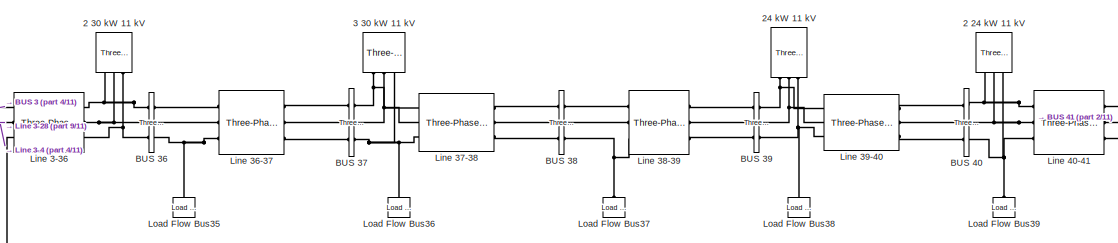
[diagram: root canvas - part 1/11, top left region]
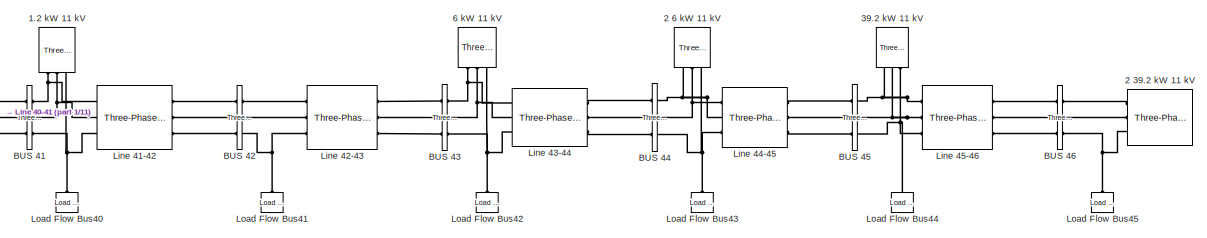
[diagram: root canvas - part 2/11, top center region]
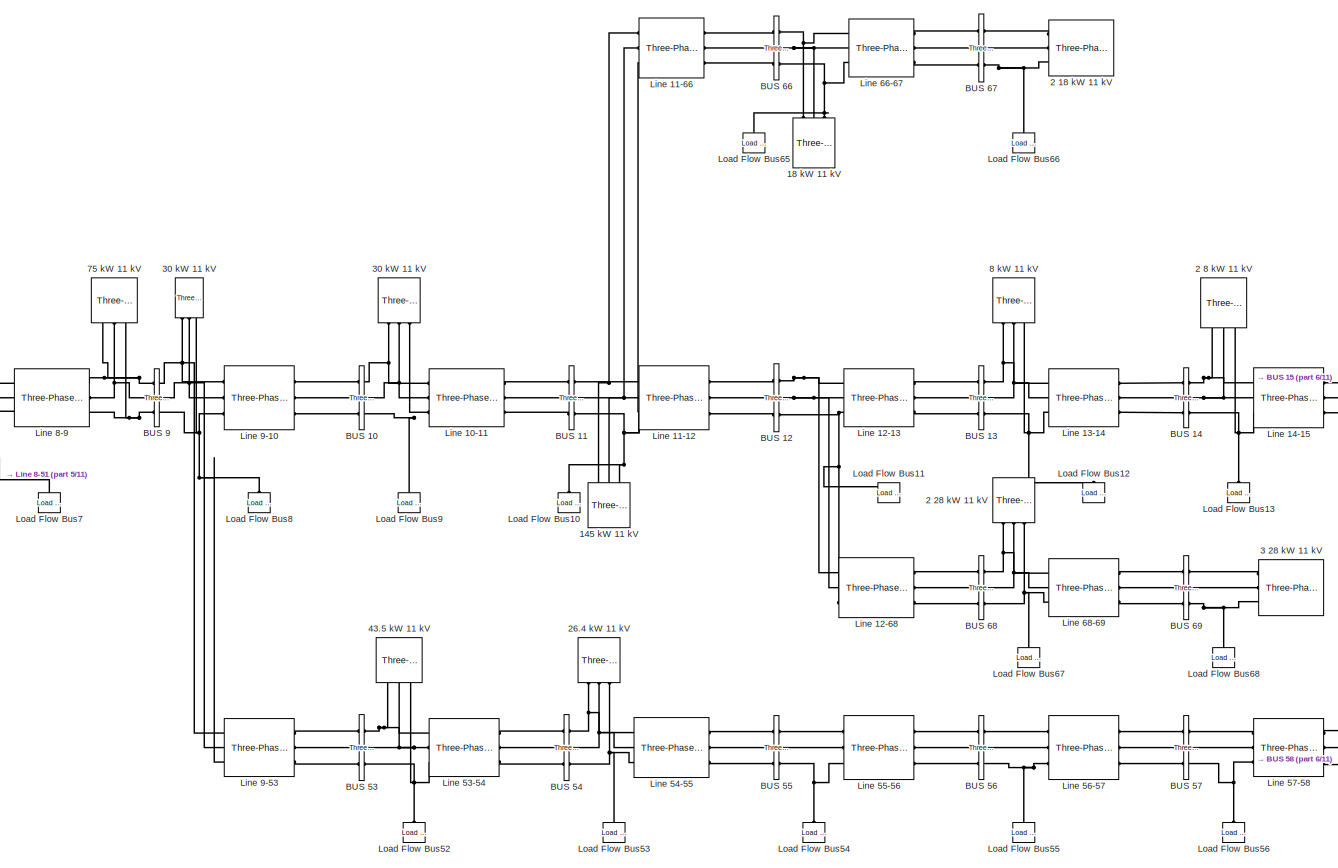
[diagram: root canvas - part 3/11, central region]
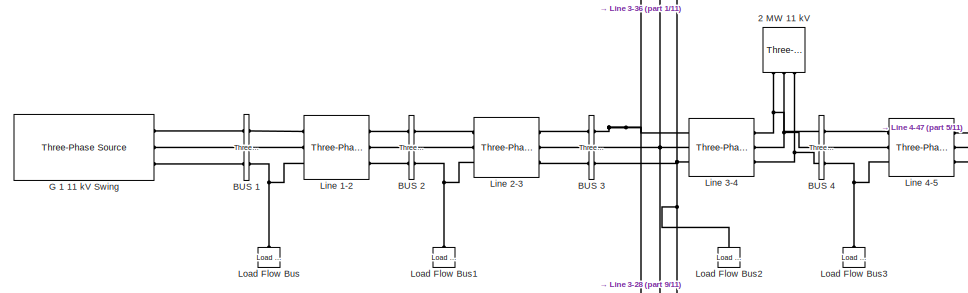
[diagram: root canvas - part 4/11, middle left region]
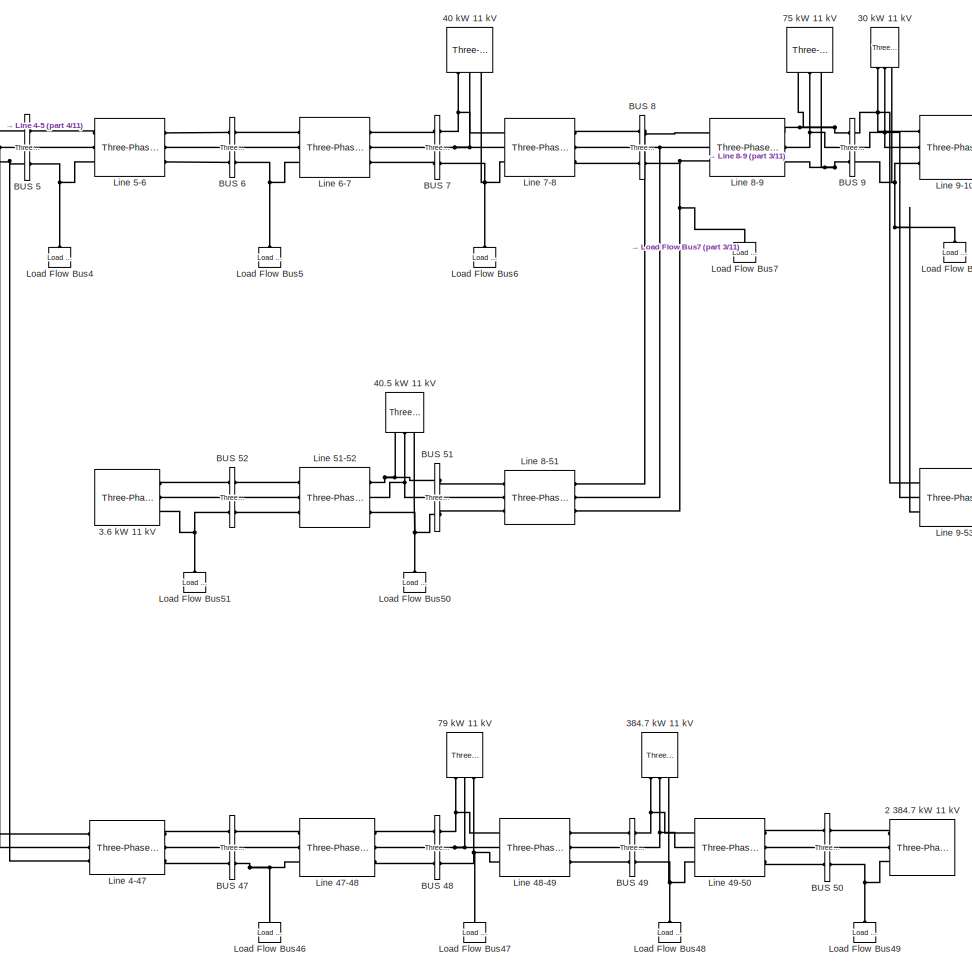
[diagram: root canvas - part 5/11, middle left region]
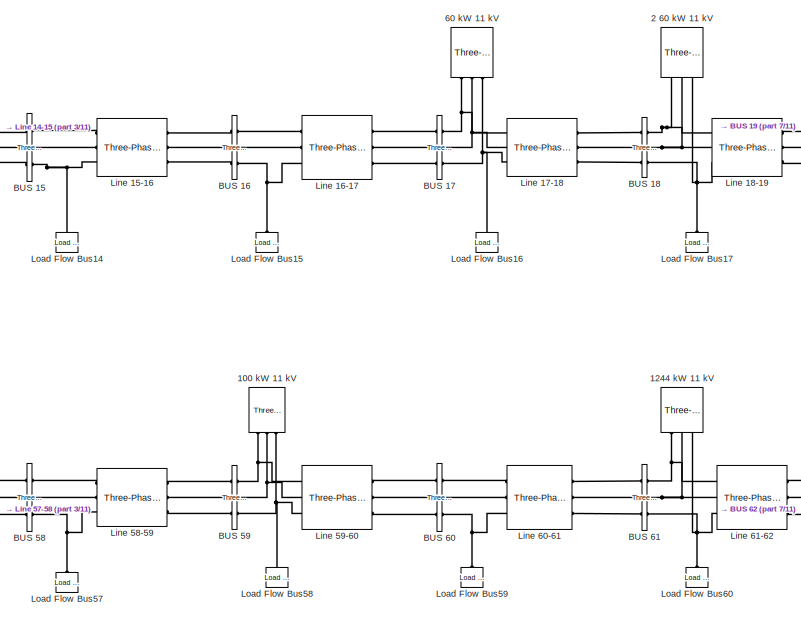
[diagram: root canvas - part 6/11, central region]
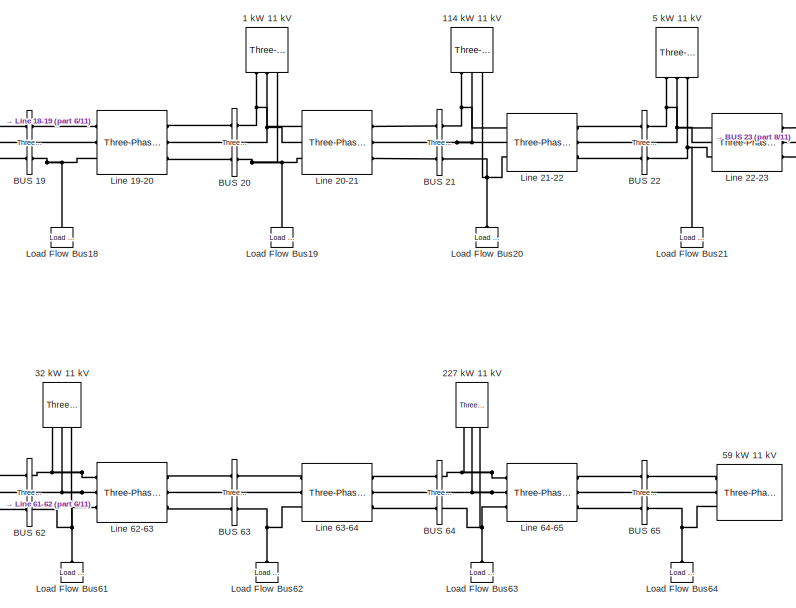
[diagram: root canvas - part 7/11, middle right region]
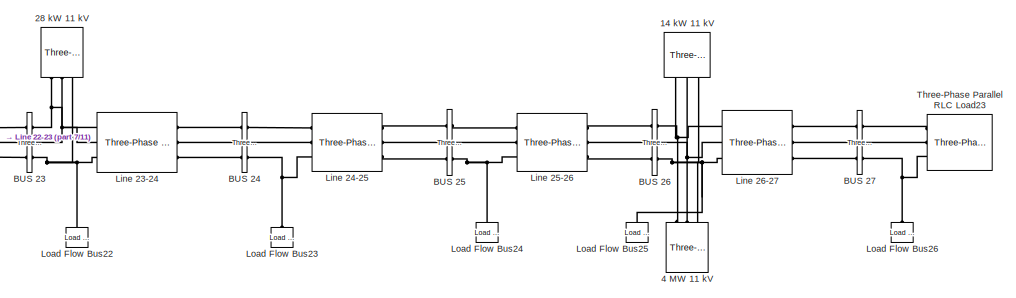
[diagram: root canvas - part 8/11, middle right region]
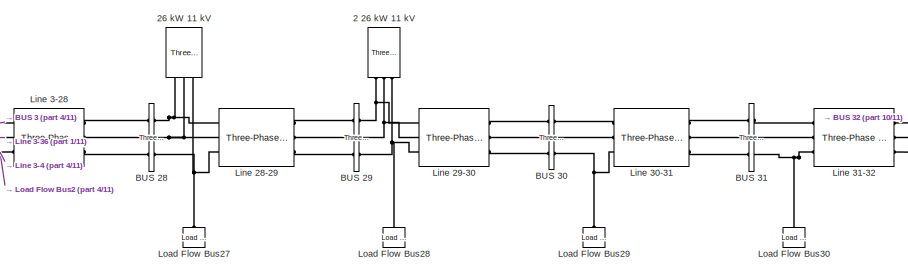
[diagram: root canvas - part 9/11, bottom left region]
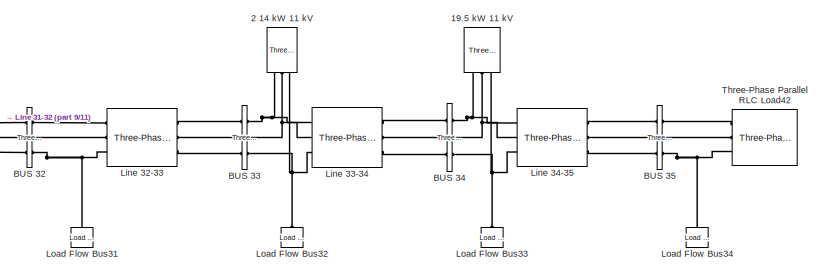
[diagram: root canvas - part 10/11, bottom center region]
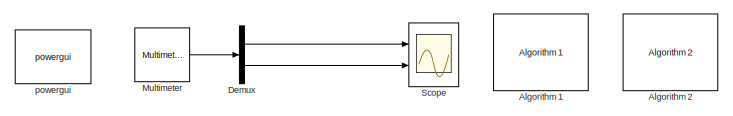
[diagram: root canvas - part 11/11, bottom left region]
MODEL slx_dbb0506e99c8
KIND model
CONFIG AbsTol = auto
CONFIG EnableMultiTasking = off
CONFIG FixedStep = auto
CONFIG MaxStep = 1e-4
CONFIG MinStep = auto
CONFIG RelTol = 1e-3
CONFIG SampleTimeConstraint = Unconstrained
CONFIG Solver = FixedStepDiscrete
CONFIG SolverName = FixedStepDiscrete
CONFIG StartTime = 0.0
CONFIG StopTime = 0.125 - 5e-5
BLOCK [Reference] 1 kW 11 kV  REF=powerlib/Elements/Three-Phase
Parallel RLC Load
  AttributesFormatString = \n
  Ports = [0, 0, 0, 0, 0, 3]
  SourceBlock = powerlib/Elements/Three-Phase\nParallel RLC Load
  SourceProductBaseCode = PS
  SourceProductName = Simscape Power Systems
  SourceType = Three-Phase Parallel RLC Load
BLOCK [Reference] 1.2 kW 11 kV  REF=powerlib/Elements/Three-Phase
Parallel RLC Load
  AttributesFormatString = \n
  Ports = [0, 0, 0, 0, 0, 3]
  SourceBlock = powerlib/Elements/Three-Phase\nParallel RLC Load
  SourceProductBaseCode = PS
  SourceProductName = Simscape Power Systems
  SourceType = Three-Phase Parallel RLC Load
BLOCK [Reference] 100 kW 11 kV  REF=powerlib/Elements/Three-Phase
Parallel RLC Load
  AttributesFormatString = \n
  Ports = [0, 0, 0, 0, 0, 3]
  SourceBlock = powerlib/Elements/Three-Phase\nParallel RLC Load
  SourceProductBaseCode = PS
  SourceProductName = Simscape Power Systems
  SourceType = Three-Phase Parallel RLC Load
BLOCK [Reference] 114 kW 11 kV  REF=powerlib/Elements/Three-Phase
Parallel RLC Load
  AttributesFormatString = \n
  Ports = [0, 0, 0, 0, 0, 3]
  SourceBlock = powerlib/Elements/Three-Phase\nParallel RLC Load
  SourceProductBaseCode = PS
  SourceProductName = Simscape Power Systems
  SourceType = Three-Phase Parallel RLC Load
BLOCK [Reference] 1244 kW 11 kV  REF=powerlib/Elements/Three-Phase
Parallel RLC Load
  AttributesFormatString = \n
  Ports = [0, 0, 0, 0, 0, 3]
  SourceBlock = powerlib/Elements/Three-Phase\nParallel RLC Load
  SourceProductBaseCode = PS
  SourceProductName = Simscape Power Systems
  SourceType = Three-Phase Parallel RLC Load
BLOCK [Reference] 14 kW 11 kV  REF=powerlib/Elements/Three-Phase
Parallel RLC Load
  AttributesFormatString = \n
  Ports = [0, 0, 0, 0, 0, 3]
  SourceBlock = powerlib/Elements/Three-Phase\nParallel RLC Load
  SourceProductBaseCode = PS
  SourceProductName = Simscape Power Systems
  SourceType = Three-Phase Parallel RLC Load
BLOCK [Reference] 145 kW 11 kV  REF=powerlib/Elements/Three-Phase
Parallel RLC Load
  AttributesFormatString = \n
  Ports = [0, 0, 0, 0, 0, 3]
  SourceBlock = powerlib/Elements/Three-Phase\nParallel RLC Load
  SourceProductBaseCode = PS
  SourceProductName = Simscape Power Systems
  SourceType = Three-Phase Parallel RLC Load
BLOCK [Reference] 18 kW 11 kV  REF=powerlib/Elements/Three-Phase
Parallel RLC Load
  AttributesFormatString = \n
  Ports = [0, 0, 0, 0, 0, 3]
  SourceBlock = powerlib/Elements/Three-Phase\nParallel RLC Load
  SourceProductBaseCode = PS
  SourceProductName = Simscape Power Systems
  SourceType = Three-Phase Parallel RLC Load
BLOCK [Reference] 19.5 kW 11 kV  REF=powerlib/Elements/Three-Phase
Parallel RLC Load
  AttributesFormatString = \n
  Ports = [0, 0, 0, 0, 0, 3]
  SourceBlock = powerlib/Elements/Three-Phase\nParallel RLC Load
  SourceProductBaseCode = PS
  SourceProductName = Simscape Power Systems
  SourceType = Three-Phase Parallel RLC Load
BLOCK [Reference] 2 14 kW 11 kV  REF=powerlib/Elements/Three-Phase
Parallel RLC Load
  AttributesFormatString = \n
  Ports = [0, 0, 0, 0, 0, 3]
  SourceBlock = powerlib/Elements/Three-Phase\nParallel RLC Load
  SourceProductBaseCode = PS
  SourceProductName = Simscape Power Systems
  SourceType = Three-Phase Parallel RLC Load
BLOCK [Reference] 2 18 kW 11 kV  REF=powerlib/Elements/Three-Phase
Parallel RLC Load
  AttributesFormatString = \n
  Ports = [0, 0, 0, 0, 0, 3]
  SourceBlock = powerlib/Elements/Three-Phase\nParallel RLC Load
  SourceProductBaseCode = PS
  SourceProductName = Simscape Power Systems
  SourceType = Three-Phase Parallel RLC Load
BLOCK [Reference] 2 24 kW 11 kV  REF=powerlib/Elements/Three-Phase
Parallel RLC Load
  AttributesFormatString = \n
  Ports = [0, 0, 0, 0, 0, 3]
  SourceBlock = powerlib/Elements/Three-Phase\nParallel RLC Load
  SourceProductBaseCode = PS
  SourceProductName = Simscape Power Systems
  SourceType = Three-Phase Parallel RLC Load
BLOCK [Reference] 2 26 kW 11 kV  REF=powerlib/Elements/Three-Phase
Parallel RLC Load
  AttributesFormatString = \n
  Ports = [0, 0, 0, 0, 0, 3]
  SourceBlock = powerlib/Elements/Three-Phase\nParallel RLC Load
  SourceProductBaseCode = PS
  SourceProductName = Simscape Power Systems
  SourceType = Three-Phase Parallel RLC Load
BLOCK [Reference] 2 28 kW 11 kV  REF=powerlib/Elements/Three-Phase
Parallel RLC Load
  AttributesFormatString = \n
  Ports = [0, 0, 0, 0, 0, 3]
  SourceBlock = powerlib/Elements/Three-Phase\nParallel RLC Load
  SourceProductBaseCode = PS
  SourceProductName = Simscape Power Systems
  SourceType = Three-Phase Parallel RLC Load
BLOCK [Reference] 2 30 kW 11 kV  REF=powerlib/Elements/Three-Phase
Parallel RLC Load
  AttributesFormatString = \n
  Ports = [0, 0, 0, 0, 0, 3]
  SourceBlock = powerlib/Elements/Three-Phase\nParallel RLC Load
  SourceProductBaseCode = PS
  SourceProductName = Simscape Power Systems
  SourceType = Three-Phase Parallel RLC Load
BLOCK [Reference] 2 384.7 kW 11 kV  REF=powerlib/Elements/Three-Phase
Parallel RLC Load
  AttributesFormatString = \n
  Ports = [0, 0, 0, 0, 0, 3]
  SourceBlock = powerlib/Elements/Three-Phase\nParallel RLC Load
  SourceProductBaseCode = PS
  SourceProductName = Simscape Power Systems
  SourceType = Three-Phase Parallel RLC Load
BLOCK [Reference] 2 39.2 kW 11 kV  REF=powerlib/Elements/Three-Phase
Parallel RLC Load
  AttributesFormatString = \n
  Ports = [0, 0, 0, 0, 0, 3]
  SourceBlock = powerlib/Elements/Three-Phase\nParallel RLC Load
  SourceProductBaseCode = PS
  SourceProductName = Simscape Power Systems
  SourceType = Three-Phase Parallel RLC Load
BLOCK [Reference] 2 6 kW 11 kV  REF=powerlib/Elements/Three-Phase
Parallel RLC Load
  AttributesFormatString = \n
  Ports = [0, 0, 0, 0, 0, 3]
  SourceBlock = powerlib/Elements/Three-Phase\nParallel RLC Load
  SourceProductBaseCode = PS
  SourceProductName = Simscape Power Systems
  SourceType = Three-Phase Parallel RLC Load
BLOCK [Reference] 2 60 kW 11 kV  REF=powerlib/Elements/Three-Phase
Parallel RLC Load
  AttributesFormatString = \n
  Ports = [0, 0, 0, 0, 0, 3]
  SourceBlock = powerlib/Elements/Three-Phase\nParallel RLC Load
  SourceProductBaseCode = PS
  SourceProductName = Simscape Power Systems
  SourceType = Three-Phase Parallel RLC Load
BLOCK [Reference] 2 8 kW 11 kV  REF=powerlib/Elements/Three-Phase
Parallel RLC Load
  AttributesFormatString = \n
  Ports = [0, 0, 0, 0, 0, 3]
  SourceBlock = powerlib/Elements/Three-Phase\nParallel RLC Load
  SourceProductBaseCode = PS
  SourceProductName = Simscape Power Systems
  SourceType = Three-Phase Parallel RLC Load
BLOCK [Reference] 2 MW 11 kV  REF=powerlib/Elements/Three-Phase
Parallel RLC Load
  AttributesFormatString = \n
  Ports = [0, 0, 0, 0, 0, 3]
  SourceBlock = powerlib/Elements/Three-Phase\nParallel RLC Load
  SourceProductBaseCode = PS
  SourceProductName = Simscape Power Systems
  SourceType = Three-Phase Parallel RLC Load
BLOCK [Reference] 227 kW 11 kV  REF=powerlib/Elements/Three-Phase
Parallel RLC Load
  AttributesFormatString = \n
  Ports = [0, 0, 0, 0, 0, 3]
  SourceBlock = powerlib/Elements/Three-Phase\nParallel RLC Load
  SourceProductBaseCode = PS
  SourceProductName = Simscape Power Systems
  SourceType = Three-Phase Parallel RLC Load
BLOCK [Reference] 24 kW 11 kV  REF=powerlib/Elements/Three-Phase
Parallel RLC Load
  AttributesFormatString = \n
  Ports = [0, 0, 0, 0, 0, 3]
  SourceBlock = powerlib/Elements/Three-Phase\nParallel RLC Load
  SourceProductBaseCode = PS
  SourceProductName = Simscape Power Systems
  SourceType = Three-Phase Parallel RLC Load
BLOCK [Reference] 26 kW 11 kV  REF=powerlib/Elements/Three-Phase
Parallel RLC Load
  AttributesFormatString = \n
  Ports = [0, 0, 0, 0, 0, 3]
  SourceBlock = powerlib/Elements/Three-Phase\nParallel RLC Load
  SourceProductBaseCode = PS
  SourceProductName = Simscape Power Systems
  SourceType = Three-Phase Parallel RLC Load
BLOCK [Reference] 26.4 kW 11 kV  REF=powerlib/Elements/Three-Phase
Parallel RLC Load
  AttributesFormatString = \n
  Ports = [0, 0, 0, 0, 0, 3]
  SourceBlock = powerlib/Elements/Three-Phase\nParallel RLC Load
  SourceProductBaseCode = PS
  SourceProductName = Simscape Power Systems
  SourceType = Three-Phase Parallel RLC Load
BLOCK [Reference] 28 kW 11 kV  REF=powerlib/Elements/Three-Phase
Parallel RLC Load
  AttributesFormatString = \n
  Ports = [0, 0, 0, 0, 0, 3]
  SourceBlock = powerlib/Elements/Three-Phase\nParallel RLC Load
  SourceProductBaseCode = PS
  SourceProductName = Simscape Power Systems
  SourceType = Three-Phase Parallel RLC Load
BLOCK [Reference] 3 28 kW 11 kV  REF=powerlib/Elements/Three-Phase
Parallel RLC Load
  AttributesFormatString = \n
  Ports = [0, 0, 0, 0, 0, 3]
  SourceBlock = powerlib/Elements/Three-Phase\nParallel RLC Load
  SourceProductBaseCode = PS
  SourceProductName = Simscape Power Systems
  SourceType = Three-Phase Parallel RLC Load
BLOCK [Reference] 3 30 kW 11 kV  REF=powerlib/Elements/Three-Phase
Parallel RLC Load
  AttributesFormatString = \n
  Ports = [0, 0, 0, 0, 0, 3]
  SourceBlock = powerlib/Elements/Three-Phase\nParallel RLC Load
  SourceProductBaseCode = PS
  SourceProductName = Simscape Power Systems
  SourceType = Three-Phase Parallel RLC Load
BLOCK [Reference] 3.6 kW 11 kV  REF=powerlib/Elements/Three-Phase
Parallel RLC Load
  AttributesFormatString = \n
  Ports = [0, 0, 0, 0, 0, 3]
  SourceBlock = powerlib/Elements/Three-Phase\nParallel RLC Load
  SourceProductBaseCode = PS
  SourceProductName = Simscape Power Systems
  SourceType = Three-Phase Parallel RLC Load
BLOCK [Reference] 30 kW 11 kV  REF=powerlib/Elements/Three-Phase
Parallel RLC Load
  AttributesFormatString = \n
  Ports = [0, 0, 0, 0, 0, 3]
  SourceBlock = powerlib/Elements/Three-Phase\nParallel RLC Load
  SourceProductBaseCode = PS
  SourceProductName = Simscape Power Systems
  SourceType = Three-Phase Parallel RLC Load
BLOCK [Reference] 32 kW 11 kV  REF=powerlib/Elements/Three-Phase
Parallel RLC Load
  AttributesFormatString = \n
  Ports = [0, 0, 0, 0, 0, 3]
  SourceBlock = powerlib/Elements/Three-Phase\nParallel RLC Load
  SourceProductBaseCode = PS
  SourceProductName = Simscape Power Systems
  SourceType = Three-Phase Parallel RLC Load
BLOCK [Reference] 384.7 kW 11 kV  REF=powerlib/Elements/Three-Phase
Parallel RLC Load
  AttributesFormatString = \n
  Ports = [0, 0, 0, 0, 0, 3]
  SourceBlock = powerlib/Elements/Three-Phase\nParallel RLC Load
  SourceProductBaseCode = PS
  SourceProductName = Simscape Power Systems
  SourceType = Three-Phase Parallel RLC Load
BLOCK [Reference] 39.2 kW 11 kV  REF=powerlib/Elements/Three-Phase
Parallel RLC Load
  AttributesFormatString = \n
  Ports = [0, 0, 0, 0, 0, 3]
  SourceBlock = powerlib/Elements/Three-Phase\nParallel RLC Load
  SourceProductBaseCode = PS
  SourceProductName = Simscape Power Systems
  SourceType = Three-Phase Parallel RLC Load
BLOCK [Reference] 4 MW 11 kV  REF=powerlib/Elements/Three-Phase
Parallel RLC Load
  AttributesFormatString = \n
  Ports = [0, 0, 0, 0, 0, 3]
  SourceBlock = powerlib/Elements/Three-Phase\nParallel RLC Load
  SourceProductBaseCode = PS
  SourceProductName = Simscape Power Systems
  SourceType = Three-Phase Parallel RLC Load
BLOCK [Reference] 40 kW 11 kV  REF=powerlib/Elements/Three-Phase
Parallel RLC Load
  AttributesFormatString = \n
  Ports = [0, 0, 0, 0, 0, 3]
  SourceBlock = powerlib/Elements/Three-Phase\nParallel RLC Load
  SourceProductBaseCode = PS
  SourceProductName = Simscape Power Systems
  SourceType = Three-Phase Parallel RLC Load
BLOCK [Reference] 40.5 kW 11 kV  REF=powerlib/Elements/Three-Phase
Parallel RLC Load
  AttributesFormatString = \n
  Ports = [0, 0, 0, 0, 0, 3]
  SourceBlock = powerlib/Elements/Three-Phase\nParallel RLC Load
  SourceProductBaseCode = PS
  SourceProductName = Simscape Power Systems
  SourceType = Three-Phase Parallel RLC Load
BLOCK [Reference] 43.5 kW 11 kV  REF=powerlib/Elements/Three-Phase
Parallel RLC Load
  AttributesFormatString = \n
  Ports = [0, 0, 0, 0, 0, 3]
  SourceBlock = powerlib/Elements/Three-Phase\nParallel RLC Load
  SourceProductBaseCode = PS
  SourceProductName = Simscape Power Systems
  SourceType = Three-Phase Parallel RLC Load
BLOCK [Reference] 5 kW 11 kV  REF=powerlib/Elements/Three-Phase
Parallel RLC Load
  AttributesFormatString = \n
  Ports = [0, 0, 0, 0, 0, 3]
  SourceBlock = powerlib/Elements/Three-Phase\nParallel RLC Load
  SourceProductBaseCode = PS
  SourceProductName = Simscape Power Systems
  SourceType = Three-Phase Parallel RLC Load
BLOCK [Reference] 59 kW 11 kV  REF=powerlib/Elements/Three-Phase
Parallel RLC Load
  AttributesFormatString = \n
  Ports = [0, 0, 0, 0, 0, 3]
  SourceBlock = powerlib/Elements/Three-Phase\nParallel RLC Load
  SourceProductBaseCode = PS
  SourceProductName = Simscape Power Systems
  SourceType = Three-Phase Parallel RLC Load
BLOCK [Reference] 6 kW 11 kV  REF=powerlib/Elements/Three-Phase
Parallel RLC Load
  AttributesFormatString = \n
  Ports = [0, 0, 0, 0, 0, 3]
  SourceBlock = powerlib/Elements/Three-Phase\nParallel RLC Load
  SourceProductBaseCode = PS
  SourceProductName = Simscape Power Systems
  SourceType = Three-Phase Parallel RLC Load
BLOCK [Reference] 60 kW 11 kV  REF=powerlib/Elements/Three-Phase
Parallel RLC Load
  AttributesFormatString = \n
  Ports = [0, 0, 0, 0, 0, 3]
  SourceBlock = powerlib/Elements/Three-Phase\nParallel RLC Load
  SourceProductBaseCode = PS
  SourceProductName = Simscape Power Systems
  SourceType = Three-Phase Parallel RLC Load
BLOCK [Reference] 75 kW 11 kV  REF=powerlib/Elements/Three-Phase
Parallel RLC Load
  AttributesFormatString = \n
  Ports = [0, 0, 0, 0, 0, 3]
  SourceBlock = powerlib/Elements/Three-Phase\nParallel RLC Load
  SourceProductBaseCode = PS
  SourceProductName = Simscape Power Systems
  SourceType = Three-Phase Parallel RLC Load
BLOCK [Reference] 79 kW 11 kV  REF=powerlib/Elements/Three-Phase
Parallel RLC Load
  AttributesFormatString = \n
  Ports = [0, 0, 0, 0, 0, 3]
  SourceBlock = powerlib/Elements/Three-Phase\nParallel RLC Load
  SourceProductBaseCode = PS
  SourceProductName = Simscape Power Systems
  SourceType = Three-Phase Parallel RLC Load
BLOCK [Reference] 8 kW 11 kV  REF=powerlib/Elements/Three-Phase
Parallel RLC Load
  AttributesFormatString = \n
  Ports = [0, 0, 0, 0, 0, 3]
  SourceBlock = powerlib/Elements/Three-Phase\nParallel RLC Load
  SourceProductBaseCode = PS
  SourceProductName = Simscape Power Systems
  SourceType = Three-Phase Parallel RLC Load
BLOCK [Reference] Algorithm 1  REF=auto_lib/Algorithm 1
  Ports = []
  SourceBlock = auto_lib/Algorithm 1
BLOCK [Reference] Algorithm 2  REF=auto_lib/Algorithm 2
  Ports = []
  SourceBlock = auto_lib/Algorithm 2
BLOCK [Reference] BUS 1  REF=powerlib/Measurements/Three-Phase
V-I Measurement
  Ports = [0, 0, 0, 0, 0, 3, 3]
  SourceBlock = powerlib/Measurements/Three-Phase\nV-I Measurement
  SourceProductBaseCode = PS
  SourceProductName = Simscape Power Systems
  SourceType = Three-Phase VI Measurement
BLOCK [Reference] BUS 10  REF=powerlib/Measurements/Three-Phase
V-I Measurement
  Ports = [0, 0, 0, 0, 0, 3, 3]
  SourceBlock = powerlib/Measurements/Three-Phase\nV-I Measurement
  SourceProductBaseCode = PS
  SourceProductName = Simscape Power Systems
  SourceType = Three-Phase VI Measurement
BLOCK [Reference] BUS 11  REF=powerlib/Measurements/Three-Phase
V-I Measurement
  Ports = [0, 0, 0, 0, 0, 3, 3]
  SourceBlock = powerlib/Measurements/Three-Phase\nV-I Measurement
  SourceProductBaseCode = PS
  SourceProductName = Simscape Power Systems
  SourceType = Three-Phase VI Measurement
BLOCK [Reference] BUS 12  REF=powerlib/Measurements/Three-Phase
V-I Measurement
  Ports = [0, 0, 0, 0, 0, 3, 3]
  SourceBlock = powerlib/Measurements/Three-Phase\nV-I Measurement
  SourceProductBaseCode = PS
  SourceProductName = Simscape Power Systems
  SourceType = Three-Phase VI Measurement
BLOCK [Reference] BUS 13  REF=powerlib/Measurements/Three-Phase
V-I Measurement
  Ports = [0, 0, 0, 0, 0, 3, 3]
  SourceBlock = powerlib/Measurements/Three-Phase\nV-I Measurement
  SourceProductBaseCode = PS
  SourceProductName = Simscape Power Systems
  SourceType = Three-Phase VI Measurement
BLOCK [Reference] BUS 14  REF=powerlib/Measurements/Three-Phase
V-I Measurement
  Ports = [0, 0, 0, 0, 0, 3, 3]
  SourceBlock = powerlib/Measurements/Three-Phase\nV-I Measurement
  SourceProductBaseCode = PS
  SourceProductName = Simscape Power Systems
  SourceType = Three-Phase VI Measurement
BLOCK [Reference] BUS 15  REF=powerlib/Measurements/Three-Phase
V-I Measurement
  Ports = [0, 0, 0, 0, 0, 3, 3]
  SourceBlock = powerlib/Measurements/Three-Phase\nV-I Measurement
  SourceProductBaseCode = PS
  SourceProductName = Simscape Power Systems
  SourceType = Three-Phase VI Measurement
BLOCK [Reference] BUS 16  REF=powerlib/Measurements/Three-Phase
V-I Measurement
  Ports = [0, 0, 0, 0, 0, 3, 3]
  SourceBlock = powerlib/Measurements/Three-Phase\nV-I Measurement
  SourceProductBaseCode = PS
  SourceProductName = Simscape Power Systems
  SourceType = Three-Phase VI Measurement
BLOCK [Reference] BUS 17  REF=powerlib/Measurements/Three-Phase
V-I Measurement
  Ports = [0, 0, 0, 0, 0, 3, 3]
  SourceBlock = powerlib/Measurements/Three-Phase\nV-I Measurement
  SourceProductBaseCode = PS
  SourceProductName = Simscape Power Systems
  SourceType = Three-Phase VI Measurement
BLOCK [Reference] BUS 18  REF=powerlib/Measurements/Three-Phase
V-I Measurement
  Ports = [0, 0, 0, 0, 0, 3, 3]
  SourceBlock = powerlib/Measurements/Three-Phase\nV-I Measurement
  SourceProductBaseCode = PS
  SourceProductName = Simscape Power Systems
  SourceType = Three-Phase VI Measurement
BLOCK [Reference] BUS 19  REF=powerlib/Measurements/Three-Phase
V-I Measurement
  Ports = [0, 0, 0, 0, 0, 3, 3]
  SourceBlock = powerlib/Measurements/Three-Phase\nV-I Measurement
  SourceProductBaseCode = PS
  SourceProductName = Simscape Power Systems
  SourceType = Three-Phase VI Measurement
BLOCK [Reference] BUS 2  REF=powerlib/Measurements/Three-Phase
V-I Measurement
  Ports = [0, 0, 0, 0, 0, 3, 3]
  SourceBlock = powerlib/Measurements/Three-Phase\nV-I Measurement
  SourceProductBaseCode = PS
  SourceProductName = Simscape Power Systems
  SourceType = Three-Phase VI Measurement
BLOCK [Reference] BUS 20  REF=powerlib/Measurements/Three-Phase
V-I Measurement
  Ports = [0, 0, 0, 0, 0, 3, 3]
  SourceBlock = powerlib/Measurements/Three-Phase\nV-I Measurement
  SourceProductBaseCode = PS
  SourceProductName = Simscape Power Systems
  SourceType = Three-Phase VI Measurement
BLOCK [Reference] BUS 21  REF=powerlib/Measurements/Three-Phase
V-I Measurement
  Ports = [0, 0, 0, 0, 0, 3, 3]
  SourceBlock = powerlib/Measurements/Three-Phase\nV-I Measurement
  SourceProductBaseCode = PS
  SourceProductName = Simscape Power Systems
  SourceType = Three-Phase VI Measurement
BLOCK [Reference] BUS 22  REF=powerlib/Measurements/Three-Phase
V-I Measurement
  Ports = [0, 0, 0, 0, 0, 3, 3]
  SourceBlock = powerlib/Measurements/Three-Phase\nV-I Measurement
  SourceProductBaseCode = PS
  SourceProductName = Simscape Power Systems
  SourceType = Three-Phase VI Measurement
BLOCK [Reference] BUS 23  REF=powerlib/Measurements/Three-Phase
V-I Measurement
  Ports = [0, 0, 0, 0, 0, 3, 3]
  SourceBlock = powerlib/Measurements/Three-Phase\nV-I Measurement
  SourceProductBaseCode = PS
  SourceProductName = Simscape Power Systems
  SourceType = Three-Phase VI Measurement
BLOCK [Reference] BUS 24  REF=powerlib/Measurements/Three-Phase
V-I Measurement
  Ports = [0, 0, 0, 0, 0, 3, 3]
  SourceBlock = powerlib/Measurements/Three-Phase\nV-I Measurement
  SourceProductBaseCode = PS
  SourceProductName = Simscape Power Systems
  SourceType = Three-Phase VI Measurement
BLOCK [Reference] BUS 25  REF=powerlib/Measurements/Three-Phase
V-I Measurement
  Ports = [0, 0, 0, 0, 0, 3, 3]
  SourceBlock = powerlib/Measurements/Three-Phase\nV-I Measurement
  SourceProductBaseCode = PS
  SourceProductName = Simscape Power Systems
  SourceType = Three-Phase VI Measurement
BLOCK [Reference] BUS 26  REF=powerlib/Measurements/Three-Phase
V-I Measurement
  Ports = [0, 0, 0, 0, 0, 3, 3]
  SourceBlock = powerlib/Measurements/Three-Phase\nV-I Measurement
  SourceProductBaseCode = PS
  SourceProductName = Simscape Power Systems
  SourceType = Three-Phase VI Measurement
BLOCK [Reference] BUS 27  REF=powerlib/Measurements/Three-Phase
V-I Measurement
  Ports = [0, 0, 0, 0, 0, 3, 3]
  SourceBlock = powerlib/Measurements/Three-Phase\nV-I Measurement
  SourceProductBaseCode = PS
  SourceProductName = Simscape Power Systems
  SourceType = Three-Phase VI Measurement
BLOCK [Reference] BUS 28  REF=powerlib/Measurements/Three-Phase
V-I Measurement
  Ports = [0, 0, 0, 0, 0, 3, 3]
  SourceBlock = powerlib/Measurements/Three-Phase\nV-I Measurement
  SourceProductBaseCode = PS
  SourceProductName = Simscape Power Systems
  SourceType = Three-Phase VI Measurement
BLOCK [Reference] BUS 29  REF=powerlib/Measurements/Three-Phase
V-I Measurement
  Ports = [0, 0, 0, 0, 0, 3, 3]
  SourceBlock = powerlib/Measurements/Three-Phase\nV-I Measurement
  SourceProductBaseCode = PS
  SourceProductName = Simscape Power Systems
  SourceType = Three-Phase VI Measurement
BLOCK [Reference] BUS 3  REF=powerlib/Measurements/Three-Phase
V-I Measurement
  Ports = [0, 0, 0, 0, 0, 3, 3]
  SourceBlock = powerlib/Measurements/Three-Phase\nV-I Measurement
  SourceProductBaseCode = PS
  SourceProductName = Simscape Power Systems
  SourceType = Three-Phase VI Measurement
BLOCK [Reference] BUS 30  REF=powerlib/Measurements/Three-Phase
V-I Measurement
  Ports = [0, 0, 0, 0, 0, 3, 3]
  SourceBlock = powerlib/Measurements/Three-Phase\nV-I Measurement
  SourceProductBaseCode = PS
  SourceProductName = Simscape Power Systems
  SourceType = Three-Phase VI Measurement
BLOCK [Reference] BUS 31  REF=powerlib/Measurements/Three-Phase
V-I Measurement
  Ports = [0, 0, 0, 0, 0, 3, 3]
  SourceBlock = powerlib/Measurements/Three-Phase\nV-I Measurement
  SourceProductBaseCode = PS
  SourceProductName = Simscape Power Systems
  SourceType = Three-Phase VI Measurement
BLOCK [Reference] BUS 32  REF=powerlib/Measurements/Three-Phase
V-I Measurement
  Ports = [0, 0, 0, 0, 0, 3, 3]
  SourceBlock = powerlib/Measurements/Three-Phase\nV-I Measurement
  SourceProductBaseCode = PS
  SourceProductName = Simscape Power Systems
  SourceType = Three-Phase VI Measurement
BLOCK [Reference] BUS 33  REF=powerlib/Measurements/Three-Phase
V-I Measurement
  Ports = [0, 0, 0, 0, 0, 3, 3]
  SourceBlock = powerlib/Measurements/Three-Phase\nV-I Measurement
  SourceProductBaseCode = PS
  SourceProductName = Simscape Power Systems
  SourceType = Three-Phase VI Measurement
BLOCK [Reference] BUS 34  REF=powerlib/Measurements/Three-Phase
V-I Measurement
  Ports = [0, 0, 0, 0, 0, 3, 3]
  SourceBlock = powerlib/Measurements/Three-Phase\nV-I Measurement
  SourceProductBaseCode = PS
  SourceProductName = Simscape Power Systems
  SourceType = Three-Phase VI Measurement
BLOCK [Reference] BUS 35  REF=powerlib/Measurements/Three-Phase
V-I Measurement
  Ports = [0, 0, 0, 0, 0, 3, 3]
  SourceBlock = powerlib/Measurements/Three-Phase\nV-I Measurement
  SourceProductBaseCode = PS
  SourceProductName = Simscape Power Systems
  SourceType = Three-Phase VI Measurement
BLOCK [Reference] BUS 36  REF=powerlib/Measurements/Three-Phase
V-I Measurement
  Ports = [0, 0, 0, 0, 0, 3, 3]
  SourceBlock = powerlib/Measurements/Three-Phase\nV-I Measurement
  SourceProductBaseCode = PS
  SourceProductName = Simscape Power Systems
  SourceType = Three-Phase VI Measurement
BLOCK [Reference] BUS 37  REF=powerlib/Measurements/Three-Phase
V-I Measurement
  Ports = [0, 0, 0, 0, 0, 3, 3]
  SourceBlock = powerlib/Measurements/Three-Phase\nV-I Measurement
  SourceProductBaseCode = PS
  SourceProductName = Simscape Power Systems
  SourceType = Three-Phase VI Measurement
BLOCK [Reference] BUS 38  REF=powerlib/Measurements/Three-Phase
V-I Measurement
  Ports = [0, 0, 0, 0, 0, 3, 3]
  SourceBlock = powerlib/Measurements/Three-Phase\nV-I Measurement
  SourceProductBaseCode = PS
  SourceProductName = Simscape Power Systems
  SourceType = Three-Phase VI Measurement
BLOCK [Reference] BUS 39  REF=powerlib/Measurements/Three-Phase
V-I Measurement
  Ports = [0, 0, 0, 0, 0, 3, 3]
  SourceBlock = powerlib/Measurements/Three-Phase\nV-I Measurement
  SourceProductBaseCode = PS
  SourceProductName = Simscape Power Systems
  SourceType = Three-Phase VI Measurement
BLOCK [Reference] BUS 4  REF=powerlib/Measurements/Three-Phase
V-I Measurement
  Ports = [0, 0, 0, 0, 0, 3, 3]
  SourceBlock = powerlib/Measurements/Three-Phase\nV-I Measurement
  SourceProductBaseCode = PS
  SourceProductName = Simscape Power Systems
  SourceType = Three-Phase VI Measurement
BLOCK [Reference] BUS 40  REF=powerlib/Measurements/Three-Phase
V-I Measurement
  Ports = [0, 0, 0, 0, 0, 3, 3]
  SourceBlock = powerlib/Measurements/Three-Phase\nV-I Measurement
  SourceProductBaseCode = PS
  SourceProductName = Simscape Power Systems
  SourceType = Three-Phase VI Measurement
BLOCK [Reference] BUS 41  REF=powerlib/Measurements/Three-Phase
V-I Measurement
  Ports = [0, 0, 0, 0, 0, 3, 3]
  SourceBlock = powerlib/Measurements/Three-Phase\nV-I Measurement
  SourceProductBaseCode = PS
  SourceProductName = Simscape Power Systems
  SourceType = Three-Phase VI Measurement
BLOCK [Reference] BUS 42  REF=powerlib/Measurements/Three-Phase
V-I Measurement
  Ports = [0, 0, 0, 0, 0, 3, 3]
  SourceBlock = powerlib/Measurements/Three-Phase\nV-I Measurement
  SourceProductBaseCode = PS
  SourceProductName = Simscape Power Systems
  SourceType = Three-Phase VI Measurement
BLOCK [Reference] BUS 43  REF=powerlib/Measurements/Three-Phase
V-I Measurement
  Ports = [0, 0, 0, 0, 0, 3, 3]
  SourceBlock = powerlib/Measurements/Three-Phase\nV-I Measurement
  SourceProductBaseCode = PS
  SourceProductName = Simscape Power Systems
  SourceType = Three-Phase VI Measurement
BLOCK [Reference] BUS 44  REF=powerlib/Measurements/Three-Phase
V-I Measurement
  Ports = [0, 0, 0, 0, 0, 3, 3]
  SourceBlock = powerlib/Measurements/Three-Phase\nV-I Measurement
  SourceProductBaseCode = PS
  SourceProductName = Simscape Power Systems
  SourceType = Three-Phase VI Measurement
BLOCK [Reference] BUS 45  REF=powerlib/Measurements/Three-Phase
V-I Measurement
  Ports = [0, 0, 0, 0, 0, 3, 3]
  SourceBlock = powerlib/Measurements/Three-Phase\nV-I Measurement
  SourceProductBaseCode = PS
  SourceProductName = Simscape Power Systems
  SourceType = Three-Phase VI Measurement
BLOCK [Reference] BUS 46  REF=powerlib/Measurements/Three-Phase
V-I Measurement
  Ports = [0, 0, 0, 0, 0, 3, 3]
  SourceBlock = powerlib/Measurements/Three-Phase\nV-I Measurement
  SourceProductBaseCode = PS
  SourceProductName = Simscape Power Systems
  SourceType = Three-Phase VI Measurement
BLOCK [Reference] BUS 47  REF=powerlib/Measurements/Three-Phase
V-I Measurement
  Ports = [0, 0, 0, 0, 0, 3, 3]
  SourceBlock = powerlib/Measurements/Three-Phase\nV-I Measurement
  SourceProductBaseCode = PS
  SourceProductName = Simscape Power Systems
  SourceType = Three-Phase VI Measurement
BLOCK [Reference] BUS 48  REF=powerlib/Measurements/Three-Phase
V-I Measurement
  Ports = [0, 0, 0, 0, 0, 3, 3]
  SourceBlock = powerlib/Measurements/Three-Phase\nV-I Measurement
  SourceProductBaseCode = PS
  SourceProductName = Simscape Power Systems
  SourceType = Three-Phase VI Measurement
BLOCK [Reference] BUS 49  REF=powerlib/Measurements/Three-Phase
V-I Measurement
  Ports = [0, 0, 0, 0, 0, 3, 3]
  SourceBlock = powerlib/Measurements/Three-Phase\nV-I Measurement
  SourceProductBaseCode = PS
  SourceProductName = Simscape Power Systems
  SourceType = Three-Phase VI Measurement
BLOCK [Reference] BUS 5  REF=powerlib/Measurements/Three-Phase
V-I Measurement
  Ports = [0, 0, 0, 0, 0, 3, 3]
  SourceBlock = powerlib/Measurements/Three-Phase\nV-I Measurement
  SourceProductBaseCode = PS
  SourceProductName = Simscape Power Systems
  SourceType = Three-Phase VI Measurement
BLOCK [Reference] BUS 50  REF=powerlib/Measurements/Three-Phase
V-I Measurement
  Ports = [0, 0, 0, 0, 0, 3, 3]
  SourceBlock = powerlib/Measurements/Three-Phase\nV-I Measurement
  SourceProductBaseCode = PS
  SourceProductName = Simscape Power Systems
  SourceType = Three-Phase VI Measurement
BLOCK [Reference] BUS 51  REF=powerlib/Measurements/Three-Phase
V-I Measurement
  Ports = [0, 0, 0, 0, 0, 3, 3]
  SourceBlock = powerlib/Measurements/Three-Phase\nV-I Measurement
  SourceProductBaseCode = PS
  SourceProductName = Simscape Power Systems
  SourceType = Three-Phase VI Measurement
BLOCK [Reference] BUS 52  REF=powerlib/Measurements/Three-Phase
V-I Measurement
  Ports = [0, 0, 0, 0, 0, 3, 3]
  SourceBlock = powerlib/Measurements/Three-Phase\nV-I Measurement
  SourceProductBaseCode = PS
  SourceProductName = Simscape Power Systems
  SourceType = Three-Phase VI Measurement
BLOCK [Reference] BUS 53  REF=powerlib/Measurements/Three-Phase
V-I Measurement
  Ports = [0, 0, 0, 0, 0, 3, 3]
  SourceBlock = powerlib/Measurements/Three-Phase\nV-I Measurement
  SourceProductBaseCode = PS
  SourceProductName = Simscape Power Systems
  SourceType = Three-Phase VI Measurement
BLOCK [Reference] BUS 54  REF=powerlib/Measurements/Three-Phase
V-I Measurement
  Ports = [0, 0, 0, 0, 0, 3, 3]
  SourceBlock = powerlib/Measurements/Three-Phase\nV-I Measurement
  SourceProductBaseCode = PS
  SourceProductName = Simscape Power Systems
  SourceType = Three-Phase VI Measurement
BLOCK [Reference] BUS 55  REF=powerlib/Measurements/Three-Phase
V-I Measurement
  Ports = [0, 0, 0, 0, 0, 3, 3]
  SourceBlock = powerlib/Measurements/Three-Phase\nV-I Measurement
  SourceProductBaseCode = PS
  SourceProductName = Simscape Power Systems
  SourceType = Three-Phase VI Measurement
BLOCK [Reference] BUS 56  REF=powerlib/Measurements/Three-Phase
V-I Measurement
  Ports = [0, 0, 0, 0, 0, 3, 3]
  SourceBlock = powerlib/Measurements/Three-Phase\nV-I Measurement
  SourceProductBaseCode = PS
  SourceProductName = Simscape Power Systems
  SourceType = Three-Phase VI Measurement
BLOCK [Reference] BUS 57  REF=powerlib/Measurements/Three-Phase
V-I Measurement
  Ports = [0, 0, 0, 0, 0, 3, 3]
  SourceBlock = powerlib/Measurements/Three-Phase\nV-I Measurement
  SourceProductBaseCode = PS
  SourceProductName = Simscape Power Systems
  SourceType = Three-Phase VI Measurement
BLOCK [Reference] BUS 58  REF=powerlib/Measurements/Three-Phase
V-I Measurement
  Ports = [0, 0, 0, 0, 0, 3, 3]
  SourceBlock = powerlib/Measurements/Three-Phase\nV-I Measurement
  SourceProductBaseCode = PS
  SourceProductName = Simscape Power Systems
  SourceType = Three-Phase VI Measurement
BLOCK [Reference] BUS 59  REF=powerlib/Measurements/Three-Phase
V-I Measurement
  Ports = [0, 0, 0, 0, 0, 3, 3]
  SourceBlock = powerlib/Measurements/Three-Phase\nV-I Measurement
  SourceProductBaseCode = PS
  SourceProductName = Simscape Power Systems
  SourceType = Three-Phase VI Measurement
BLOCK [Reference] BUS 6  REF=powerlib/Measurements/Three-Phase
V-I Measurement
  Ports = [0, 0, 0, 0, 0, 3, 3]
  SourceBlock = powerlib/Measurements/Three-Phase\nV-I Measurement
  SourceProductBaseCode = PS
  SourceProductName = Simscape Power Systems
  SourceType = Three-Phase VI Measurement
BLOCK [Reference] BUS 60  REF=powerlib/Measurements/Three-Phase
V-I Measurement
  Ports = [0, 0, 0, 0, 0, 3, 3]
  SourceBlock = powerlib/Measurements/Three-Phase\nV-I Measurement
  SourceProductBaseCode = PS
  SourceProductName = Simscape Power Systems
  SourceType = Three-Phase VI Measurement
BLOCK [Reference] BUS 61  REF=powerlib/Measurements/Three-Phase
V-I Measurement
  Ports = [0, 0, 0, 0, 0, 3, 3]
  SourceBlock = powerlib/Measurements/Three-Phase\nV-I Measurement
  SourceProductBaseCode = PS
  SourceProductName = Simscape Power Systems
  SourceType = Three-Phase VI Measurement
BLOCK [Reference] BUS 62  REF=powerlib/Measurements/Three-Phase
V-I Measurement
  Ports = [0, 0, 0, 0, 0, 3, 3]
  SourceBlock = powerlib/Measurements/Three-Phase\nV-I Measurement
  SourceProductBaseCode = PS
  SourceProductName = Simscape Power Systems
  SourceType = Three-Phase VI Measurement
BLOCK [Reference] BUS 63  REF=powerlib/Measurements/Three-Phase
V-I Measurement
  Ports = [0, 0, 0, 0, 0, 3, 3]
  SourceBlock = powerlib/Measurements/Three-Phase\nV-I Measurement
  SourceProductBaseCode = PS
  SourceProductName = Simscape Power Systems
  SourceType = Three-Phase VI Measurement
BLOCK [Reference] BUS 64  REF=powerlib/Measurements/Three-Phase
V-I Measurement
  Ports = [0, 0, 0, 0, 0, 3, 3]
  SourceBlock = powerlib/Measurements/Three-Phase\nV-I Measurement
  SourceProductBaseCode = PS
  SourceProductName = Simscape Power Systems
  SourceType = Three-Phase VI Measurement
BLOCK [Reference] BUS 65  REF=powerlib/Measurements/Three-Phase
V-I Measurement
  Ports = [0, 0, 0, 0, 0, 3, 3]
  SourceBlock = powerlib/Measurements/Three-Phase\nV-I Measurement
  SourceProductBaseCode = PS
  SourceProductName = Simscape Power Systems
  SourceType = Three-Phase VI Measurement
BLOCK [Reference] BUS 66  REF=powerlib/Measurements/Three-Phase
V-I Measurement
  Ports = [0, 0, 0, 0, 0, 3, 3]
  SourceBlock = powerlib/Measurements/Three-Phase\nV-I Measurement
  SourceProductBaseCode = PS
  SourceProductName = Simscape Power Systems
  SourceType = Three-Phase VI Measurement
BLOCK [Reference] BUS 67  REF=powerlib/Measurements/Three-Phase
V-I Measurement
  Ports = [0, 0, 0, 0, 0, 3, 3]
  SourceBlock = powerlib/Measurements/Three-Phase\nV-I Measurement
  SourceProductBaseCode = PS
  SourceProductName = Simscape Power Systems
  SourceType = Three-Phase VI Measurement
BLOCK [Reference] BUS 68  REF=powerlib/Measurements/Three-Phase
V-I Measurement
  Ports = [0, 0, 0, 0, 0, 3, 3]
  SourceBlock = powerlib/Measurements/Three-Phase\nV-I Measurement
  SourceProductBaseCode = PS
  SourceProductName = Simscape Power Systems
  SourceType = Three-Phase VI Measurement
BLOCK [Reference] BUS 69  REF=powerlib/Measurements/Three-Phase
V-I Measurement
  Ports = [0, 0, 0, 0, 0, 3, 3]
  SourceBlock = powerlib/Measurements/Three-Phase\nV-I Measurement
  SourceProductBaseCode = PS
  SourceProductName = Simscape Power Systems
  SourceType = Three-Phase VI Measurement
BLOCK [Reference] BUS 7  REF=powerlib/Measurements/Three-Phase
V-I Measurement
  Ports = [0, 0, 0, 0, 0, 3, 3]
  SourceBlock = powerlib/Measurements/Three-Phase\nV-I Measurement
  SourceProductBaseCode = PS
  SourceProductName = Simscape Power Systems
  SourceType = Three-Phase VI Measurement
BLOCK [Reference] BUS 8  REF=powerlib/Measurements/Three-Phase
V-I Measurement
  Ports = [0, 0, 0, 0, 0, 3, 3]
  SourceBlock = powerlib/Measurements/Three-Phase\nV-I Measurement
  SourceProductBaseCode = PS
  SourceProductName = Simscape Power Systems
  SourceType = Three-Phase VI Measurement
BLOCK [Reference] BUS 9  REF=powerlib/Measurements/Three-Phase
V-I Measurement
  Ports = [0, 0, 0, 0, 0, 3, 3]
  SourceBlock = powerlib/Measurements/Three-Phase\nV-I Measurement
  SourceProductBaseCode = PS
  SourceProductName = Simscape Power Systems
  SourceType = Three-Phase VI Measurement
BLOCK [Demux] Demux
  DisplayOption = bar
  Outputs = 2
  Ports = [1, 2]
BLOCK [Reference] G 1 11 kV Swing  REF=powerlib/Electrical
Sources/Three-Phase Source
  Ports = [0, 0, 0, 0, 0, 0, 3]
  SourceBlock = powerlib/Electrical\nSources/Three-Phase Source
  SourceProductBaseCode = PS
  SourceProductName = Simscape Power Systems
  SourceType = Three-Phase Source
BLOCK [Reference] Line 1-2  REF=powerlib/Elements/Three-Phase
Parallel RLC Branch
  AttributesFormatString = \n
  Ports = [0, 0, 0, 0, 0, 3, 3]
  SourceBlock = powerlib/Elements/Three-Phase\nParallel RLC Branch
  SourceProductBaseCode = PS
  SourceProductName = Simscape Power Systems
  SourceType = Three-Phase Parallel RLC Branch
BLOCK [Reference] Line 10-11  REF=powerlib/Elements/Three-Phase
Parallel RLC Branch
  AttributesFormatString = \n
  Ports = [0, 0, 0, 0, 0, 3, 3]
  SourceBlock = powerlib/Elements/Three-Phase\nParallel RLC Branch
  SourceProductBaseCode = PS
  SourceProductName = Simscape Power Systems
  SourceType = Three-Phase Parallel RLC Branch
BLOCK [Reference] Line 11-12  REF=powerlib/Elements/Three-Phase
Parallel RLC Branch
  AttributesFormatString = \n
  Ports = [0, 0, 0, 0, 0, 3, 3]
  SourceBlock = powerlib/Elements/Three-Phase\nParallel RLC Branch
  SourceProductBaseCode = PS
  SourceProductName = Simscape Power Systems
  SourceType = Three-Phase Parallel RLC Branch
BLOCK [Reference] Line 11-66  REF=powerlib/Elements/Three-Phase
Parallel RLC Branch
  AttributesFormatString = \n
  Ports = [0, 0, 0, 0, 0, 3, 3]
  SourceBlock = powerlib/Elements/Three-Phase\nParallel RLC Branch
  SourceProductBaseCode = PS
  SourceProductName = Simscape Power Systems
  SourceType = Three-Phase Parallel RLC Branch
BLOCK [Reference] Line 12-13  REF=powerlib/Elements/Three-Phase
Parallel RLC Branch
  AttributesFormatString = \n
  Ports = [0, 0, 0, 0, 0, 3, 3]
  SourceBlock = powerlib/Elements/Three-Phase\nParallel RLC Branch
  SourceProductBaseCode = PS
  SourceProductName = Simscape Power Systems
  SourceType = Three-Phase Parallel RLC Branch
BLOCK [Reference] Line 12-68  REF=powerlib/Elements/Three-Phase
Parallel RLC Branch
  AttributesFormatString = \n
  Ports = [0, 0, 0, 0, 0, 3, 3]
  SourceBlock = powerlib/Elements/Three-Phase\nParallel RLC Branch
  SourceProductBaseCode = PS
  SourceProductName = Simscape Power Systems
  SourceType = Three-Phase Parallel RLC Branch
BLOCK [Reference] Line 13-14  REF=powerlib/Elements/Three-Phase
Parallel RLC Branch
  AttributesFormatString = \n
  Ports = [0, 0, 0, 0, 0, 3, 3]
  SourceBlock = powerlib/Elements/Three-Phase\nParallel RLC Branch
  SourceProductBaseCode = PS
  SourceProductName = Simscape Power Systems
  SourceType = Three-Phase Parallel RLC Branch
BLOCK [Reference] Line 14-15  REF=powerlib/Elements/Three-Phase
Parallel RLC Branch
  AttributesFormatString = \n
  Ports = [0, 0, 0, 0, 0, 3, 3]
  SourceBlock = powerlib/Elements/Three-Phase\nParallel RLC Branch
  SourceProductBaseCode = PS
  SourceProductName = Simscape Power Systems
  SourceType = Three-Phase Parallel RLC Branch
BLOCK [Reference] Line 15-16  REF=powerlib/Elements/Three-Phase
Parallel RLC Branch
  AttributesFormatString = \n
  Ports = [0, 0, 0, 0, 0, 3, 3]
  SourceBlock = powerlib/Elements/Three-Phase\nParallel RLC Branch
  SourceProductBaseCode = PS
  SourceProductName = Simscape Power Systems
  SourceType = Three-Phase Parallel RLC Branch
BLOCK [Reference] Line 16-17  REF=powerlib/Elements/Three-Phase
Parallel RLC Branch
  AttributesFormatString = \n
  Ports = [0, 0, 0, 0, 0, 3, 3]
  SourceBlock = powerlib/Elements/Three-Phase\nParallel RLC Branch
  SourceProductBaseCode = PS
  SourceProductName = Simscape Power Systems
  SourceType = Three-Phase Parallel RLC Branch
BLOCK [Reference] Line 17-18  REF=powerlib/Elements/Three-Phase
Parallel RLC Branch
  AttributesFormatString = \n
  Ports = [0, 0, 0, 0, 0, 3, 3]
  SourceBlock = powerlib/Elements/Three-Phase\nParallel RLC Branch
  SourceProductBaseCode = PS
  SourceProductName = Simscape Power Systems
  SourceType = Three-Phase Parallel RLC Branch
BLOCK [Reference] Line 18-19  REF=powerlib/Elements/Three-Phase
Parallel RLC Branch
  AttributesFormatString = \n
  Ports = [0, 0, 0, 0, 0, 3, 3]
  SourceBlock = powerlib/Elements/Three-Phase\nParallel RLC Branch
  SourceProductBaseCode = PS
  SourceProductName = Simscape Power Systems
  SourceType = Three-Phase Parallel RLC Branch
BLOCK [Reference] Line 19-20  REF=powerlib/Elements/Three-Phase
Parallel RLC Branch
  AttributesFormatString = \n
  Ports = [0, 0, 0, 0, 0, 3, 3]
  SourceBlock = powerlib/Elements/Three-Phase\nParallel RLC Branch
  SourceProductBaseCode = PS
  SourceProductName = Simscape Power Systems
  SourceType = Three-Phase Parallel RLC Branch
BLOCK [Reference] Line 2-3  REF=powerlib/Elements/Three-Phase
Parallel RLC Branch
  AttributesFormatString = \n
  Ports = [0, 0, 0, 0, 0, 3, 3]
  SourceBlock = powerlib/Elements/Three-Phase\nParallel RLC Branch
  SourceProductBaseCode = PS
  SourceProductName = Simscape Power Systems
  SourceType = Three-Phase Parallel RLC Branch
BLOCK [Reference] Line 20-21  REF=powerlib/Elements/Three-Phase
Parallel RLC Branch
  AttributesFormatString = \n
  Ports = [0, 0, 0, 0, 0, 3, 3]
  SourceBlock = powerlib/Elements/Three-Phase\nParallel RLC Branch
  SourceProductBaseCode = PS
  SourceProductName = Simscape Power Systems
  SourceType = Three-Phase Parallel RLC Branch
BLOCK [Reference] Line 21-22  REF=powerlib/Elements/Three-Phase
Parallel RLC Branch
  AttributesFormatString = \n
  Ports = [0, 0, 0, 0, 0, 3, 3]
  SourceBlock = powerlib/Elements/Three-Phase\nParallel RLC Branch
  SourceProductBaseCode = PS
  SourceProductName = Simscape Power Systems
  SourceType = Three-Phase Parallel RLC Branch
BLOCK [Reference] Line 22-23  REF=powerlib/Elements/Three-Phase
Parallel RLC Branch
  AttributesFormatString = \n
  Ports = [0, 0, 0, 0, 0, 3, 3]
  SourceBlock = powerlib/Elements/Three-Phase\nParallel RLC Branch
  SourceProductBaseCode = PS
  SourceProductName = Simscape Power Systems
  SourceType = Three-Phase Parallel RLC Branch
BLOCK [Reference] Line 23-24  REF=powerlib/Elements/Three-Phase
Parallel RLC Branch
  AttributesFormatString = \n
  Ports = [0, 0, 0, 0, 0, 3, 3]
  SourceBlock = powerlib/Elements/Three-Phase\nParallel RLC Branch
  SourceProductBaseCode = PS
  SourceProductName = Simscape Power Systems
  SourceType = Three-Phase Parallel RLC Branch
BLOCK [Reference] Line 24-25  REF=powerlib/Elements/Three-Phase
Parallel RLC Branch
  AttributesFormatString = \n
  Ports = [0, 0, 0, 0, 0, 3, 3]
  SourceBlock = powerlib/Elements/Three-Phase\nParallel RLC Branch
  SourceProductBaseCode = PS
  SourceProductName = Simscape Power Systems
  SourceType = Three-Phase Parallel RLC Branch
BLOCK [Reference] Line 25-26  REF=powerlib/Elements/Three-Phase
Parallel RLC Branch
  AttributesFormatString = \n
  Ports = [0, 0, 0, 0, 0, 3, 3]
  SourceBlock = powerlib/Elements/Three-Phase\nParallel RLC Branch
  SourceProductBaseCode = PS
  SourceProductName = Simscape Power Systems
  SourceType = Three-Phase Parallel RLC Branch
BLOCK [Reference] Line 26-27  REF=powerlib/Elements/Three-Phase
Parallel RLC Branch
  AttributesFormatString = \n
  Ports = [0, 0, 0, 0, 0, 3, 3]
  SourceBlock = powerlib/Elements/Three-Phase\nParallel RLC Branch
  SourceProductBaseCode = PS
  SourceProductName = Simscape Power Systems
  SourceType = Three-Phase Parallel RLC Branch
BLOCK [Reference] Line 28-29  REF=powerlib/Elements/Three-Phase
Parallel RLC Branch
  AttributesFormatString = \n
  Ports = [0, 0, 0, 0, 0, 3, 3]
  SourceBlock = powerlib/Elements/Three-Phase\nParallel RLC Branch
  SourceProductBaseCode = PS
  SourceProductName = Simscape Power Systems
  SourceType = Three-Phase Parallel RLC Branch
BLOCK [Reference] Line 29-30  REF=powerlib/Elements/Three-Phase
Parallel RLC Branch
  AttributesFormatString = \n
  Ports = [0, 0, 0, 0, 0, 3, 3]
  SourceBlock = powerlib/Elements/Three-Phase\nParallel RLC Branch
  SourceProductBaseCode = PS
  SourceProductName = Simscape Power Systems
  SourceType = Three-Phase Parallel RLC Branch
BLOCK [Reference] Line 3-28  REF=powerlib/Elements/Three-Phase
Parallel RLC Branch
  AttributesFormatString = \n
  Ports = [0, 0, 0, 0, 0, 3, 3]
  SourceBlock = powerlib/Elements/Three-Phase\nParallel RLC Branch
  SourceProductBaseCode = PS
  SourceProductName = Simscape Power Systems
  SourceType = Three-Phase Parallel RLC Branch
BLOCK [Reference] Line 3-36  REF=powerlib/Elements/Three-Phase
Parallel RLC Branch
  AttributesFormatString = \n
  Ports = [0, 0, 0, 0, 0, 3, 3]
  SourceBlock = powerlib/Elements/Three-Phase\nParallel RLC Branch
  SourceProductBaseCode = PS
  SourceProductName = Simscape Power Systems
  SourceType = Three-Phase Parallel RLC Branch
BLOCK [Reference] Line 3-4  REF=powerlib/Elements/Three-Phase
Parallel RLC Branch
  AttributesFormatString = \n
  Ports = [0, 0, 0, 0, 0, 3, 3]
  SourceBlock = powerlib/Elements/Three-Phase\nParallel RLC Branch
  SourceProductBaseCode = PS
  SourceProductName = Simscape Power Systems
  SourceType = Three-Phase Parallel RLC Branch
BLOCK [Reference] Line 30-31  REF=powerlib/Elements/Three-Phase
Parallel RLC Branch
  AttributesFormatString = \n
  Ports = [0, 0, 0, 0, 0, 3, 3]
  SourceBlock = powerlib/Elements/Three-Phase\nParallel RLC Branch
  SourceProductBaseCode = PS
  SourceProductName = Simscape Power Systems
  SourceType = Three-Phase Parallel RLC Branch
BLOCK [Reference] Line 31-32  REF=powerlib/Elements/Three-Phase
Parallel RLC Branch
  AttributesFormatString = \n
  Ports = [0, 0, 0, 0, 0, 3, 3]
  SourceBlock = powerlib/Elements/Three-Phase\nParallel RLC Branch
  SourceProductBaseCode = PS
  SourceProductName = Simscape Power Systems
  SourceType = Three-Phase Parallel RLC Branch
BLOCK [Reference] Line 32-33  REF=powerlib/Elements/Three-Phase
Parallel RLC Branch
  AttributesFormatString = \n
  Ports = [0, 0, 0, 0, 0, 3, 3]
  SourceBlock = powerlib/Elements/Three-Phase\nParallel RLC Branch
  SourceProductBaseCode = PS
  SourceProductName = Simscape Power Systems
  SourceType = Three-Phase Parallel RLC Branch
BLOCK [Reference] Line 33-34  REF=powerlib/Elements/Three-Phase
Parallel RLC Branch
  AttributesFormatString = \n
  Ports = [0, 0, 0, 0, 0, 3, 3]
  SourceBlock = powerlib/Elements/Three-Phase\nParallel RLC Branch
  SourceProductBaseCode = PS
  SourceProductName = Simscape Power Systems
  SourceType = Three-Phase Parallel RLC Branch
BLOCK [Reference] Line 34-35  REF=powerlib/Elements/Three-Phase
Parallel RLC Branch
  AttributesFormatString = \n
  Ports = [0, 0, 0, 0, 0, 3, 3]
  SourceBlock = powerlib/Elements/Three-Phase\nParallel RLC Branch
  SourceProductBaseCode = PS
  SourceProductName = Simscape Power Systems
  SourceType = Three-Phase Parallel RLC Branch
BLOCK [Reference] Line 36-37  REF=powerlib/Elements/Three-Phase
Parallel RLC Branch
  AttributesFormatString = \n
  Ports = [0, 0, 0, 0, 0, 3, 3]
  SourceBlock = powerlib/Elements/Three-Phase\nParallel RLC Branch
  SourceProductBaseCode = PS
  SourceProductName = Simscape Power Systems
  SourceType = Three-Phase Parallel RLC Branch
BLOCK [Reference] Line 37-38  REF=powerlib/Elements/Three-Phase
Parallel RLC Branch
  AttributesFormatString = \n
  Ports = [0, 0, 0, 0, 0, 3, 3]
  SourceBlock = powerlib/Elements/Three-Phase\nParallel RLC Branch
  SourceProductBaseCode = PS
  SourceProductName = Simscape Power Systems
  SourceType = Three-Phase Parallel RLC Branch
BLOCK [Reference] Line 38-39  REF=powerlib/Elements/Three-Phase
Parallel RLC Branch
  AttributesFormatString = \n
  Ports = [0, 0, 0, 0, 0, 3, 3]
  SourceBlock = powerlib/Elements/Three-Phase\nParallel RLC Branch
  SourceProductBaseCode = PS
  SourceProductName = Simscape Power Systems
  SourceType = Three-Phase Parallel RLC Branch
BLOCK [Reference] Line 39-40  REF=powerlib/Elements/Three-Phase
Parallel RLC Branch
  AttributesFormatString = \n
  Ports = [0, 0, 0, 0, 0, 3, 3]
  SourceBlock = powerlib/Elements/Three-Phase\nParallel RLC Branch
  SourceProductBaseCode = PS
  SourceProductName = Simscape Power Systems
  SourceType = Three-Phase Parallel RLC Branch
BLOCK [Reference] Line 4-47  REF=powerlib/Elements/Three-Phase
Parallel RLC Branch
  AttributesFormatString = \n
  Ports = [0, 0, 0, 0, 0, 3, 3]
  SourceBlock = powerlib/Elements/Three-Phase\nParallel RLC Branch
  SourceProductBaseCode = PS
  SourceProductName = Simscape Power Systems
  SourceType = Three-Phase Parallel RLC Branch
BLOCK [Reference] Line 4-5  REF=powerlib/Elements/Three-Phase
Parallel RLC Branch
  AttributesFormatString = \n
  Ports = [0, 0, 0, 0, 0, 3, 3]
  SourceBlock = powerlib/Elements/Three-Phase\nParallel RLC Branch
  SourceProductBaseCode = PS
  SourceProductName = Simscape Power Systems
  SourceType = Three-Phase Parallel RLC Branch
BLOCK [Reference] Line 40-41  REF=powerlib/Elements/Three-Phase
Parallel RLC Branch
  AttributesFormatString = \n
  Ports = [0, 0, 0, 0, 0, 3, 3]
  SourceBlock = powerlib/Elements/Three-Phase\nParallel RLC Branch
  SourceProductBaseCode = PS
  SourceProductName = Simscape Power Systems
  SourceType = Three-Phase Parallel RLC Branch
BLOCK [Reference] Line 41-42  REF=powerlib/Elements/Three-Phase
Parallel RLC Branch
  AttributesFormatString = \n
  Ports = [0, 0, 0, 0, 0, 3, 3]
  SourceBlock = powerlib/Elements/Three-Phase\nParallel RLC Branch
  SourceProductBaseCode = PS
  SourceProductName = Simscape Power Systems
  SourceType = Three-Phase Parallel RLC Branch
BLOCK [Reference] Line 42-43  REF=powerlib/Elements/Three-Phase
Parallel RLC Branch
  AttributesFormatString = \n
  Ports = [0, 0, 0, 0, 0, 3, 3]
  SourceBlock = powerlib/Elements/Three-Phase\nParallel RLC Branch
  SourceProductBaseCode = PS
  SourceProductName = Simscape Power Systems
  SourceType = Three-Phase Parallel RLC Branch
BLOCK [Reference] Line 43-44  REF=powerlib/Elements/Three-Phase
Parallel RLC Branch
  AttributesFormatString = \n
  Ports = [0, 0, 0, 0, 0, 3, 3]
  SourceBlock = powerlib/Elements/Three-Phase\nParallel RLC Branch
  SourceProductBaseCode = PS
  SourceProductName = Simscape Power Systems
  SourceType = Three-Phase Parallel RLC Branch
BLOCK [Reference] Line 44-45  REF=powerlib/Elements/Three-Phase
Parallel RLC Branch
  AttributesFormatString = \n
  Ports = [0, 0, 0, 0, 0, 3, 3]
  SourceBlock = powerlib/Elements/Three-Phase\nParallel RLC Branch
  SourceProductBaseCode = PS
  SourceProductName = Simscape Power Systems
  SourceType = Three-Phase Parallel RLC Branch
BLOCK [Reference] Line 45-46  REF=powerlib/Elements/Three-Phase
Parallel RLC Branch
  AttributesFormatString = \n
  Ports = [0, 0, 0, 0, 0, 3, 3]
  SourceBlock = powerlib/Elements/Three-Phase\nParallel RLC Branch
  SourceProductBaseCode = PS
  SourceProductName = Simscape Power Systems
  SourceType = Three-Phase Parallel RLC Branch
BLOCK [Reference] Line 47-48  REF=powerlib/Elements/Three-Phase
Parallel RLC Branch
  AttributesFormatString = \n
  Ports = [0, 0, 0, 0, 0, 3, 3]
  SourceBlock = powerlib/Elements/Three-Phase\nParallel RLC Branch
  SourceProductBaseCode = PS
  SourceProductName = Simscape Power Systems
  SourceType = Three-Phase Parallel RLC Branch
BLOCK [Reference] Line 48-49  REF=powerlib/Elements/Three-Phase
Parallel RLC Branch
  AttributesFormatString = \n
  Ports = [0, 0, 0, 0, 0, 3, 3]
  SourceBlock = powerlib/Elements/Three-Phase\nParallel RLC Branch
  SourceProductBaseCode = PS
  SourceProductName = Simscape Power Systems
  SourceType = Three-Phase Parallel RLC Branch
BLOCK [Reference] Line 49-50  REF=powerlib/Elements/Three-Phase
Parallel RLC Branch
  AttributesFormatString = \n
  Ports = [0, 0, 0, 0, 0, 3, 3]
  SourceBlock = powerlib/Elements/Three-Phase\nParallel RLC Branch
  SourceProductBaseCode = PS
  SourceProductName = Simscape Power Systems
  SourceType = Three-Phase Parallel RLC Branch
BLOCK [Reference] Line 5-6  REF=powerlib/Elements/Three-Phase
Parallel RLC Branch
  AttributesFormatString = \n
  Ports = [0, 0, 0, 0, 0, 3, 3]
  SourceBlock = powerlib/Elements/Three-Phase\nParallel RLC Branch
  SourceProductBaseCode = PS
  SourceProductName = Simscape Power Systems
  SourceType = Three-Phase Parallel RLC Branch
BLOCK [Reference] Line 51-52  REF=powerlib/Elements/Three-Phase
Parallel RLC Branch
  AttributesFormatString = \n
  Ports = [0, 0, 0, 0, 0, 3, 3]
  SourceBlock = powerlib/Elements/Three-Phase\nParallel RLC Branch
  SourceProductBaseCode = PS
  SourceProductName = Simscape Power Systems
  SourceType = Three-Phase Parallel RLC Branch
BLOCK [Reference] Line 53-54  REF=powerlib/Elements/Three-Phase
Parallel RLC Branch
  AttributesFormatString = \n
  Ports = [0, 0, 0, 0, 0, 3, 3]
  SourceBlock = powerlib/Elements/Three-Phase\nParallel RLC Branch
  SourceProductBaseCode = PS
  SourceProductName = Simscape Power Systems
  SourceType = Three-Phase Parallel RLC Branch
BLOCK [Reference] Line 54-55  REF=powerlib/Elements/Three-Phase
Parallel RLC Branch
  AttributesFormatString = \n
  Ports = [0, 0, 0, 0, 0, 3, 3]
  SourceBlock = powerlib/Elements/Three-Phase\nParallel RLC Branch
  SourceProductBaseCode = PS
  SourceProductName = Simscape Power Systems
  SourceType = Three-Phase Parallel RLC Branch
BLOCK [Reference] Line 55-56  REF=powerlib/Elements/Three-Phase
Parallel RLC Branch
  AttributesFormatString = \n
  Ports = [0, 0, 0, 0, 0, 3, 3]
  SourceBlock = powerlib/Elements/Three-Phase\nParallel RLC Branch
  SourceProductBaseCode = PS
  SourceProductName = Simscape Power Systems
  SourceType = Three-Phase Parallel RLC Branch
BLOCK [Reference] Line 56-57  REF=powerlib/Elements/Three-Phase
Parallel RLC Branch
  AttributesFormatString = \n
  Ports = [0, 0, 0, 0, 0, 3, 3]
  SourceBlock = powerlib/Elements/Three-Phase\nParallel RLC Branch
  SourceProductBaseCode = PS
  SourceProductName = Simscape Power Systems
  SourceType = Three-Phase Parallel RLC Branch
BLOCK [Reference] Line 57-58  REF=powerlib/Elements/Three-Phase
Parallel RLC Branch
  AttributesFormatString = \n
  Ports = [0, 0, 0, 0, 0, 3, 3]
  SourceBlock = powerlib/Elements/Three-Phase\nParallel RLC Branch
  SourceProductBaseCode = PS
  SourceProductName = Simscape Power Systems
  SourceType = Three-Phase Parallel RLC Branch
BLOCK [Reference] Line 58-59  REF=powerlib/Elements/Three-Phase
Parallel RLC Branch
  AttributesFormatString = \n
  Ports = [0, 0, 0, 0, 0, 3, 3]
  SourceBlock = powerlib/Elements/Three-Phase\nParallel RLC Branch
  SourceProductBaseCode = PS
  SourceProductName = Simscape Power Systems
  SourceType = Three-Phase Parallel RLC Branch
BLOCK [Reference] Line 59-60  REF=powerlib/Elements/Three-Phase
Parallel RLC Branch
  AttributesFormatString = \n
  Ports = [0, 0, 0, 0, 0, 3, 3]
  SourceBlock = powerlib/Elements/Three-Phase\nParallel RLC Branch
  SourceProductBaseCode = PS
  SourceProductName = Simscape Power Systems
  SourceType = Three-Phase Parallel RLC Branch
BLOCK [Reference] Line 6-7  REF=powerlib/Elements/Three-Phase
Parallel RLC Branch
  AttributesFormatString = \n
  Ports = [0, 0, 0, 0, 0, 3, 3]
  SourceBlock = powerlib/Elements/Three-Phase\nParallel RLC Branch
  SourceProductBaseCode = PS
  SourceProductName = Simscape Power Systems
  SourceType = Three-Phase Parallel RLC Branch
BLOCK [Reference] Line 60-61  REF=powerlib/Elements/Three-Phase
Parallel RLC Branch
  AttributesFormatString = \n
  Ports = [0, 0, 0, 0, 0, 3, 3]
  SourceBlock = powerlib/Elements/Three-Phase\nParallel RLC Branch
  SourceProductBaseCode = PS
  SourceProductName = Simscape Power Systems
  SourceType = Three-Phase Parallel RLC Branch
BLOCK [Reference] Line 61-62  REF=powerlib/Elements/Three-Phase
Parallel RLC Branch
  AttributesFormatString = \n
  Ports = [0, 0, 0, 0, 0, 3, 3]
  SourceBlock = powerlib/Elements/Three-Phase\nParallel RLC Branch
  SourceProductBaseCode = PS
  SourceProductName = Simscape Power Systems
  SourceType = Three-Phase Parallel RLC Branch
BLOCK [Reference] Line 62-63  REF=powerlib/Elements/Three-Phase
Parallel RLC Branch
  AttributesFormatString = \n
  Ports = [0, 0, 0, 0, 0, 3, 3]
  SourceBlock = powerlib/Elements/Three-Phase\nParallel RLC Branch
  SourceProductBaseCode = PS
  SourceProductName = Simscape Power Systems
  SourceType = Three-Phase Parallel RLC Branch
BLOCK [Reference] Line 63-64  REF=powerlib/Elements/Three-Phase
Parallel RLC Branch
  AttributesFormatString = \n
  Ports = [0, 0, 0, 0, 0, 3, 3]
  SourceBlock = powerlib/Elements/Three-Phase\nParallel RLC Branch
  SourceProductBaseCode = PS
  SourceProductName = Simscape Power Systems
  SourceType = Three-Phase Parallel RLC Branch
BLOCK [Reference] Line 64-65  REF=powerlib/Elements/Three-Phase
Parallel RLC Branch
  AttributesFormatString = \n
  Ports = [0, 0, 0, 0, 0, 3, 3]
  SourceBlock = powerlib/Elements/Three-Phase\nParallel RLC Branch
  SourceProductBaseCode = PS
  SourceProductName = Simscape Power Systems
  SourceType = Three-Phase Parallel RLC Branch
BLOCK [Reference] Line 66-67  REF=powerlib/Elements/Three-Phase
Parallel RLC Branch
  AttributesFormatString = \n
  Ports = [0, 0, 0, 0, 0, 3, 3]
  SourceBlock = powerlib/Elements/Three-Phase\nParallel RLC Branch
  SourceProductBaseCode = PS
  SourceProductName = Simscape Power Systems
  SourceType = Three-Phase Parallel RLC Branch
BLOCK [Reference] Line 68-69  REF=powerlib/Elements/Three-Phase
Parallel RLC Branch
  AttributesFormatString = \n
  Ports = [0, 0, 0, 0, 0, 3, 3]
  SourceBlock = powerlib/Elements/Three-Phase\nParallel RLC Branch
  SourceProductBaseCode = PS
  SourceProductName = Simscape Power Systems
  SourceType = Three-Phase Parallel RLC Branch
BLOCK [Reference] Line 7-8  REF=powerlib/Elements/Three-Phase
Parallel RLC Branch
  AttributesFormatString = \n
  Ports = [0, 0, 0, 0, 0, 3, 3]
  SourceBlock = powerlib/Elements/Three-Phase\nParallel RLC Branch
  SourceProductBaseCode = PS
  SourceProductName = Simscape Power Systems
  SourceType = Three-Phase Parallel RLC Branch
BLOCK [Reference] Line 8-51  REF=powerlib/Elements/Three-Phase
Parallel RLC Branch
  AttributesFormatString = \n
  Ports = [0, 0, 0, 0, 0, 3, 3]
  SourceBlock = powerlib/Elements/Three-Phase\nParallel RLC Branch
  SourceProductBaseCode = PS
  SourceProductName = Simscape Power Systems
  SourceType = Three-Phase Parallel RLC Branch
BLOCK [Reference] Line 8-9  REF=powerlib/Elements/Three-Phase
Parallel RLC Branch
  AttributesFormatString = \n
  Ports = [0, 0, 0, 0, 0, 3, 3]
  SourceBlock = powerlib/Elements/Three-Phase\nParallel RLC Branch
  SourceProductBaseCode = PS
  SourceProductName = Simscape Power Systems
  SourceType = Three-Phase Parallel RLC Branch
BLOCK [Reference] Line 9-10  REF=powerlib/Elements/Three-Phase
Parallel RLC Branch
  AttributesFormatString = \n
  Ports = [0, 0, 0, 0, 0, 3, 3]
  SourceBlock = powerlib/Elements/Three-Phase\nParallel RLC Branch
  SourceProductBaseCode = PS
  SourceProductName = Simscape Power Systems
  SourceType = Three-Phase Parallel RLC Branch
BLOCK [Reference] Line 9-53  REF=powerlib/Elements/Three-Phase
Parallel RLC Branch
  AttributesFormatString = \n
  Ports = [0, 0, 0, 0, 0, 3, 3]
  SourceBlock = powerlib/Elements/Three-Phase\nParallel RLC Branch
  SourceProductBaseCode = PS
  SourceProductName = Simscape Power Systems
  SourceType = Three-Phase Parallel RLC Branch
BLOCK [Reference] Load Flow Bus  REF=powerlib/Measurements/Load Flow Bus
  AttributesFormatString = %<ID>\n%<Vbase>V\n%<VLF>pu\n%<angleLF>deg.
  Ports = [0, 0, 0, 0, 0, 1]
  SourceBlock = powerlib/Measurements/Load Flow Bus
  SourceProductBaseCode = PS
  SourceProductName = Simscape Power Systems
  SourceType = Load Flow Bus
BLOCK [Reference] Load Flow Bus1  REF=powerlib/Measurements/Load Flow Bus
  AttributesFormatString = %<ID>\n%<Vbase>V\n%<VLF>pu\n%<angleLF>deg.
  Ports = [0, 0, 0, 0, 0, 1]
  SourceBlock = powerlib/Measurements/Load Flow Bus
  SourceProductBaseCode = PS
  SourceProductName = Simscape Power Systems
  SourceType = Load Flow Bus
BLOCK [Reference] Load Flow Bus10  REF=powerlib/Measurements/Load Flow Bus
  AttributesFormatString = %<ID>\n%<Vbase>V\n%<VLF>pu\n%<angleLF>deg.
  Ports = [0, 0, 0, 0, 0, 1]
  SourceBlock = powerlib/Measurements/Load Flow Bus
  SourceProductBaseCode = PS
  SourceProductName = Simscape Power Systems
  SourceType = Load Flow Bus
BLOCK [Reference] Load Flow Bus11  REF=powerlib/Measurements/Load Flow Bus
  AttributesFormatString = %<ID>\n%<Vbase>V\n%<VLF>pu\n%<angleLF>deg.
  Ports = [0, 0, 0, 0, 0, 1]
  SourceBlock = powerlib/Measurements/Load Flow Bus
  SourceProductBaseCode = PS
  SourceProductName = Simscape Power Systems
  SourceType = Load Flow Bus
BLOCK [Reference] Load Flow Bus12  REF=powerlib/Measurements/Load Flow Bus
  AttributesFormatString = %<ID>\n%<Vbase>V\n%<VLF>pu\n%<angleLF>deg.
  Ports = [0, 0, 0, 0, 0, 1]
  SourceBlock = powerlib/Measurements/Load Flow Bus
  SourceProductBaseCode = PS
  SourceProductName = Simscape Power Systems
  SourceType = Load Flow Bus
BLOCK [Reference] Load Flow Bus13  REF=powerlib/Measurements/Load Flow Bus
  AttributesFormatString = %<ID>\n%<Vbase>V\n%<VLF>pu\n%<angleLF>deg.
  Ports = [0, 0, 0, 0, 0, 1]
  SourceBlock = powerlib/Measurements/Load Flow Bus
  SourceProductBaseCode = PS
  SourceProductName = Simscape Power Systems
  SourceType = Load Flow Bus
BLOCK [Reference] Load Flow Bus14  REF=powerlib/Measurements/Load Flow Bus
  AttributesFormatString = %<ID>\n%<Vbase>V\n%<VLF>pu\n%<angleLF>deg.
  Ports = [0, 0, 0, 0, 0, 1]
  SourceBlock = powerlib/Measurements/Load Flow Bus
  SourceProductBaseCode = PS
  SourceProductName = Simscape Power Systems
  SourceType = Load Flow Bus
BLOCK [Reference] Load Flow Bus15  REF=powerlib/Measurements/Load Flow Bus
  AttributesFormatString = %<ID>\n%<Vbase>V\n%<VLF>pu\n%<angleLF>deg.
  Ports = [0, 0, 0, 0, 0, 1]
  SourceBlock = powerlib/Measurements/Load Flow Bus
  SourceProductBaseCode = PS
  SourceProductName = Simscape Power Systems
  SourceType = Load Flow Bus
BLOCK [Reference] Load Flow Bus16  REF=powerlib/Measurements/Load Flow Bus
  AttributesFormatString = %<ID>\n%<Vbase>V\n%<VLF>pu\n%<angleLF>deg.
  Ports = [0, 0, 0, 0, 0, 1]
  SourceBlock = powerlib/Measurements/Load Flow Bus
  SourceProductBaseCode = PS
  SourceProductName = Simscape Power Systems
  SourceType = Load Flow Bus
BLOCK [Reference] Load Flow Bus17  REF=powerlib/Measurements/Load Flow Bus
  AttributesFormatString = %<ID>\n%<Vbase>V\n%<VLF>pu\n%<angleLF>deg.
  Ports = [0, 0, 0, 0, 0, 1]
  SourceBlock = powerlib/Measurements/Load Flow Bus
  SourceProductBaseCode = PS
  SourceProductName = Simscape Power Systems
  SourceType = Load Flow Bus
BLOCK [Reference] Load Flow Bus18  REF=powerlib/Measurements/Load Flow Bus
  AttributesFormatString = %<ID>\n%<Vbase>V\n%<VLF>pu\n%<angleLF>deg.
  Ports = [0, 0, 0, 0, 0, 1]
  SourceBlock = powerlib/Measurements/Load Flow Bus
  SourceProductBaseCode = PS
  SourceProductName = Simscape Power Systems
  SourceType = Load Flow Bus
BLOCK [Reference] Load Flow Bus19  REF=powerlib/Measurements/Load Flow Bus
  AttributesFormatString = %<ID>\n%<Vbase>V\n%<VLF>pu\n%<angleLF>deg.
  Ports = [0, 0, 0, 0, 0, 1]
  SourceBlock = powerlib/Measurements/Load Flow Bus
  SourceProductBaseCode = PS
  SourceProductName = Simscape Power Systems
  SourceType = Load Flow Bus
BLOCK [Reference] Load Flow Bus2  REF=powerlib/Measurements/Load Flow Bus
  AttributesFormatString = %<ID>\n%<Vbase>V\n%<VLF>pu\n%<angleLF>deg.
  Ports = [0, 0, 0, 0, 0, 1]
  SourceBlock = powerlib/Measurements/Load Flow Bus
  SourceProductBaseCode = PS
  SourceProductName = Simscape Power Systems
  SourceType = Load Flow Bus
BLOCK [Reference] Load Flow Bus20  REF=powerlib/Measurements/Load Flow Bus
  AttributesFormatString = %<ID>\n%<Vbase>V\n%<VLF>pu\n%<angleLF>deg.
  Ports = [0, 0, 0, 0, 0, 1]
  SourceBlock = powerlib/Measurements/Load Flow Bus
  SourceProductBaseCode = PS
  SourceProductName = Simscape Power Systems
  SourceType = Load Flow Bus
BLOCK [Reference] Load Flow Bus21  REF=powerlib/Measurements/Load Flow Bus
  AttributesFormatString = %<ID>\n%<Vbase>V\n%<VLF>pu\n%<angleLF>deg.
  Ports = [0, 0, 0, 0, 0, 1]
  SourceBlock = powerlib/Measurements/Load Flow Bus
  SourceProductBaseCode = PS
  SourceProductName = Simscape Power Systems
  SourceType = Load Flow Bus
BLOCK [Reference] Load Flow Bus22  REF=powerlib/Measurements/Load Flow Bus
  AttributesFormatString = %<ID>\n%<Vbase>V\n%<VLF>pu\n%<angleLF>deg.
  Ports = [0, 0, 0, 0, 0, 1]
  SourceBlock = powerlib/Measurements/Load Flow Bus
  SourceProductBaseCode = PS
  SourceProductName = Simscape Power Systems
  SourceType = Load Flow Bus
BLOCK [Reference] Load Flow Bus23  REF=powerlib/Measurements/Load Flow Bus
  AttributesFormatString = %<ID>\n%<Vbase>V\n%<VLF>pu\n%<angleLF>deg.
  Ports = [0, 0, 0, 0, 0, 1]
  SourceBlock = powerlib/Measurements/Load Flow Bus
  SourceProductBaseCode = PS
  SourceProductName = Simscape Power Systems
  SourceType = Load Flow Bus
BLOCK [Reference] Load Flow Bus24  REF=powerlib/Measurements/Load Flow Bus
  AttributesFormatString = %<ID>\n%<Vbase>V\n%<VLF>pu\n%<angleLF>deg.
  Ports = [0, 0, 0, 0, 0, 1]
  SourceBlock = powerlib/Measurements/Load Flow Bus
  SourceProductBaseCode = PS
  SourceProductName = Simscape Power Systems
  SourceType = Load Flow Bus
BLOCK [Reference] Load Flow Bus25  REF=powerlib/Measurements/Load Flow Bus
  AttributesFormatString = %<ID>\n%<Vbase>V\n%<VLF>pu\n%<angleLF>deg.
  Ports = [0, 0, 0, 0, 0, 1]
  SourceBlock = powerlib/Measurements/Load Flow Bus
  SourceProductBaseCode = PS
  SourceProductName = Simscape Power Systems
  SourceType = Load Flow Bus
BLOCK [Reference] Load Flow Bus26  REF=powerlib/Measurements/Load Flow Bus
  AttributesFormatString = %<ID>\n%<Vbase>V\n%<VLF>pu\n%<angleLF>deg.
  Ports = [0, 0, 0, 0, 0, 1]
  SourceBlock = powerlib/Measurements/Load Flow Bus
  SourceProductBaseCode = PS
  SourceProductName = Simscape Power Systems
  SourceType = Load Flow Bus
BLOCK [Reference] Load Flow Bus27  REF=powerlib/Measurements/Load Flow Bus
  AttributesFormatString = %<ID>\n%<Vbase>V\n%<VLF>pu\n%<angleLF>deg.
  Ports = [0, 0, 0, 0, 0, 1]
  SourceBlock = powerlib/Measurements/Load Flow Bus
  SourceProductBaseCode = PS
  SourceProductName = Simscape Power Systems
  SourceType = Load Flow Bus
BLOCK [Reference] Load Flow Bus28  REF=powerlib/Measurements/Load Flow Bus
  AttributesFormatString = %<ID>\n%<Vbase>V\n%<VLF>pu\n%<angleLF>deg.
  Ports = [0, 0, 0, 0, 0, 1]
  SourceBlock = powerlib/Measurements/Load Flow Bus
  SourceProductBaseCode = PS
  SourceProductName = Simscape Power Systems
  SourceType = Load Flow Bus
BLOCK [Reference] Load Flow Bus29  REF=powerlib/Measurements/Load Flow Bus
  AttributesFormatString = %<ID>\n%<Vbase>V\n%<VLF>pu\n%<angleLF>deg.
  Ports = [0, 0, 0, 0, 0, 1]
  SourceBlock = powerlib/Measurements/Load Flow Bus
  SourceProductBaseCode = PS
  SourceProductName = Simscape Power Systems
  SourceType = Load Flow Bus
BLOCK [Reference] Load Flow Bus3  REF=powerlib/Measurements/Load Flow Bus
  AttributesFormatString = %<ID>\n%<Vbase>V\n%<VLF>pu\n%<angleLF>deg.
  Ports = [0, 0, 0, 0, 0, 1]
  SourceBlock = powerlib/Measurements/Load Flow Bus
  SourceProductBaseCode = PS
  SourceProductName = Simscape Power Systems
  SourceType = Load Flow Bus
BLOCK [Reference] Load Flow Bus30  REF=powerlib/Measurements/Load Flow Bus
  AttributesFormatString = %<ID>\n%<Vbase>V\n%<VLF>pu\n%<angleLF>deg.
  Ports = [0, 0, 0, 0, 0, 1]
  SourceBlock = powerlib/Measurements/Load Flow Bus
  SourceProductBaseCode = PS
  SourceProductName = Simscape Power Systems
  SourceType = Load Flow Bus
BLOCK [Reference] Load Flow Bus31  REF=powerlib/Measurements/Load Flow Bus
  AttributesFormatString = %<ID>\n%<Vbase>V\n%<VLF>pu\n%<angleLF>deg.
  Ports = [0, 0, 0, 0, 0, 1]
  SourceBlock = powerlib/Measurements/Load Flow Bus
  SourceProductBaseCode = PS
  SourceProductName = Simscape Power Systems
  SourceType = Load Flow Bus
BLOCK [Reference] Load Flow Bus32  REF=powerlib/Measurements/Load Flow Bus
  AttributesFormatString = %<ID>\n%<Vbase>V\n%<VLF>pu\n%<angleLF>deg.
  Ports = [0, 0, 0, 0, 0, 1]
  SourceBlock = powerlib/Measurements/Load Flow Bus
  SourceProductBaseCode = PS
  SourceProductName = Simscape Power Systems
  SourceType = Load Flow Bus
BLOCK [Reference] Load Flow Bus33  REF=powerlib/Measurements/Load Flow Bus
  AttributesFormatString = %<ID>\n%<Vbase>V\n%<VLF>pu\n%<angleLF>deg.
  Ports = [0, 0, 0, 0, 0, 1]
  SourceBlock = powerlib/Measurements/Load Flow Bus
  SourceProductBaseCode = PS
  SourceProductName = Simscape Power Systems
  SourceType = Load Flow Bus
BLOCK [Reference] Load Flow Bus34  REF=powerlib/Measurements/Load Flow Bus
  AttributesFormatString = %<ID>\n%<Vbase>V\n%<VLF>pu\n%<angleLF>deg.
  Ports = [0, 0, 0, 0, 0, 1]
  SourceBlock = powerlib/Measurements/Load Flow Bus
  SourceProductBaseCode = PS
  SourceProductName = Simscape Power Systems
  SourceType = Load Flow Bus
BLOCK [Reference] Load Flow Bus35  REF=powerlib/Measurements/Load Flow Bus
  AttributesFormatString = %<ID>\n%<Vbase>V\n%<VLF>pu\n%<angleLF>deg.
  Ports = [0, 0, 0, 0, 0, 1]
  SourceBlock = powerlib/Measurements/Load Flow Bus
  SourceProductBaseCode = PS
  SourceProductName = Simscape Power Systems
  SourceType = Load Flow Bus
BLOCK [Reference] Load Flow Bus36  REF=powerlib/Measurements/Load Flow Bus
  AttributesFormatString = %<ID>\n%<Vbase>V\n%<VLF>pu\n%<angleLF>deg.
  Ports = [0, 0, 0, 0, 0, 1]
  SourceBlock = powerlib/Measurements/Load Flow Bus
  SourceProductBaseCode = PS
  SourceProductName = Simscape Power Systems
  SourceType = Load Flow Bus
BLOCK [Reference] Load Flow Bus37  REF=powerlib/Measurements/Load Flow Bus
  AttributesFormatString = %<ID>\n%<Vbase>V\n%<VLF>pu\n%<angleLF>deg.
  Ports = [0, 0, 0, 0, 0, 1]
  SourceBlock = powerlib/Measurements/Load Flow Bus
  SourceProductBaseCode = PS
  SourceProductName = Simscape Power Systems
  SourceType = Load Flow Bus
BLOCK [Reference] Load Flow Bus38  REF=powerlib/Measurements/Load Flow Bus
  AttributesFormatString = %<ID>\n%<Vbase>V\n%<VLF>pu\n%<angleLF>deg.
  Ports = [0, 0, 0, 0, 0, 1]
  SourceBlock = powerlib/Measurements/Load Flow Bus
  SourceProductBaseCode = PS
  SourceProductName = Simscape Power Systems
  SourceType = Load Flow Bus
BLOCK [Reference] Load Flow Bus39  REF=powerlib/Measurements/Load Flow Bus
  AttributesFormatString = %<ID>\n%<Vbase>V\n%<VLF>pu\n%<angleLF>deg.
  Ports = [0, 0, 0, 0, 0, 1]
  SourceBlock = powerlib/Measurements/Load Flow Bus
  SourceProductBaseCode = PS
  SourceProductName = Simscape Power Systems
  SourceType = Load Flow Bus
BLOCK [Reference] Load Flow Bus4  REF=powerlib/Measurements/Load Flow Bus
  AttributesFormatString = %<ID>\n%<Vbase>V\n%<VLF>pu\n%<angleLF>deg.
  Ports = [0, 0, 0, 0, 0, 1]
  SourceBlock = powerlib/Measurements/Load Flow Bus
  SourceProductBaseCode = PS
  SourceProductName = Simscape Power Systems
  SourceType = Load Flow Bus
BLOCK [Reference] Load Flow Bus40  REF=powerlib/Measurements/Load Flow Bus
  AttributesFormatString = %<ID>\n%<Vbase>V\n%<VLF>pu\n%<angleLF>deg.
  Ports = [0, 0, 0, 0, 0, 1]
  SourceBlock = powerlib/Measurements/Load Flow Bus
  SourceProductBaseCode = PS
  SourceProductName = Simscape Power Systems
  SourceType = Load Flow Bus
BLOCK [Reference] Load Flow Bus41  REF=powerlib/Measurements/Load Flow Bus
  AttributesFormatString = %<ID>\n%<Vbase>V\n%<VLF>pu\n%<angleLF>deg.
  Ports = [0, 0, 0, 0, 0, 1]
  SourceBlock = powerlib/Measurements/Load Flow Bus
  SourceProductBaseCode = PS
  SourceProductName = Simscape Power Systems
  SourceType = Load Flow Bus
BLOCK [Reference] Load Flow Bus42  REF=powerlib/Measurements/Load Flow Bus
  AttributesFormatString = %<ID>\n%<Vbase>V\n%<VLF>pu\n%<angleLF>deg.
  Ports = [0, 0, 0, 0, 0, 1]
  SourceBlock = powerlib/Measurements/Load Flow Bus
  SourceProductBaseCode = PS
  SourceProductName = Simscape Power Systems
  SourceType = Load Flow Bus
BLOCK [Reference] Load Flow Bus43  REF=powerlib/Measurements/Load Flow Bus
  AttributesFormatString = %<ID>\n%<Vbase>V\n%<VLF>pu\n%<angleLF>deg.
  Ports = [0, 0, 0, 0, 0, 1]
  SourceBlock = powerlib/Measurements/Load Flow Bus
  SourceProductBaseCode = PS
  SourceProductName = Simscape Power Systems
  SourceType = Load Flow Bus
BLOCK [Reference] Load Flow Bus44  REF=powerlib/Measurements/Load Flow Bus
  AttributesFormatString = %<ID>\n%<Vbase>V\n%<VLF>pu\n%<angleLF>deg.
  Ports = [0, 0, 0, 0, 0, 1]
  SourceBlock = powerlib/Measurements/Load Flow Bus
  SourceProductBaseCode = PS
  SourceProductName = Simscape Power Systems
  SourceType = Load Flow Bus
BLOCK [Reference] Load Flow Bus45  REF=powerlib/Measurements/Load Flow Bus
  AttributesFormatString = %<ID>\n%<Vbase>V\n%<VLF>pu\n%<angleLF>deg.
  Ports = [0, 0, 0, 0, 0, 1]
  SourceBlock = powerlib/Measurements/Load Flow Bus
  SourceProductBaseCode = PS
  SourceProductName = Simscape Power Systems
  SourceType = Load Flow Bus
BLOCK [Reference] Load Flow Bus46  REF=powerlib/Measurements/Load Flow Bus
  AttributesFormatString = %<ID>\n%<Vbase>V\n%<VLF>pu\n%<angleLF>deg.
  Ports = [0, 0, 0, 0, 0, 1]
  SourceBlock = powerlib/Measurements/Load Flow Bus
  SourceProductBaseCode = PS
  SourceProductName = Simscape Power Systems
  SourceType = Load Flow Bus
BLOCK [Reference] Load Flow Bus47  REF=powerlib/Measurements/Load Flow Bus
  AttributesFormatString = %<ID>\n%<Vbase>V\n%<VLF>pu\n%<angleLF>deg.
  Ports = [0, 0, 0, 0, 0, 1]
  SourceBlock = powerlib/Measurements/Load Flow Bus
  SourceProductBaseCode = PS
  SourceProductName = Simscape Power Systems
  SourceType = Load Flow Bus
BLOCK [Reference] Load Flow Bus48  REF=powerlib/Measurements/Load Flow Bus
  AttributesFormatString = %<ID>\n%<Vbase>V\n%<VLF>pu\n%<angleLF>deg.
  Ports = [0, 0, 0, 0, 0, 1]
  SourceBlock = powerlib/Measurements/Load Flow Bus
  SourceProductBaseCode = PS
  SourceProductName = Simscape Power Systems
  SourceType = Load Flow Bus
BLOCK [Reference] Load Flow Bus49  REF=powerlib/Measurements/Load Flow Bus
  AttributesFormatString = %<ID>\n%<Vbase>V\n%<VLF>pu\n%<angleLF>deg.
  Ports = [0, 0, 0, 0, 0, 1]
  SourceBlock = powerlib/Measurements/Load Flow Bus
  SourceProductBaseCode = PS
  SourceProductName = Simscape Power Systems
  SourceType = Load Flow Bus
BLOCK [Reference] Load Flow Bus5  REF=powerlib/Measurements/Load Flow Bus
  AttributesFormatString = %<ID>\n%<Vbase>V\n%<VLF>pu\n%<angleLF>deg.
  Ports = [0, 0, 0, 0, 0, 1]
  SourceBlock = powerlib/Measurements/Load Flow Bus
  SourceProductBaseCode = PS
  SourceProductName = Simscape Power Systems
  SourceType = Load Flow Bus
BLOCK [Reference] Load Flow Bus50  REF=powerlib/Measurements/Load Flow Bus
  AttributesFormatString = %<ID>\n%<Vbase>V\n%<VLF>pu\n%<angleLF>deg.
  Ports = [0, 0, 0, 0, 0, 1]
  SourceBlock = powerlib/Measurements/Load Flow Bus
  SourceProductBaseCode = PS
  SourceProductName = Simscape Power Systems
  SourceType = Load Flow Bus
BLOCK [Reference] Load Flow Bus51  REF=powerlib/Measurements/Load Flow Bus
  AttributesFormatString = %<ID>\n%<Vbase>V\n%<VLF>pu\n%<angleLF>deg.
  Ports = [0, 0, 0, 0, 0, 1]
  SourceBlock = powerlib/Measurements/Load Flow Bus
  SourceProductBaseCode = PS
  SourceProductName = Simscape Power Systems
  SourceType = Load Flow Bus
BLOCK [Reference] Load Flow Bus52  REF=powerlib/Measurements/Load Flow Bus
  AttributesFormatString = %<ID>\n%<Vbase>V\n%<VLF>pu\n%<angleLF>deg.
  Ports = [0, 0, 0, 0, 0, 1]
  SourceBlock = powerlib/Measurements/Load Flow Bus
  SourceProductBaseCode = PS
  SourceProductName = Simscape Power Systems
  SourceType = Load Flow Bus
BLOCK [Reference] Load Flow Bus53  REF=powerlib/Measurements/Load Flow Bus
  AttributesFormatString = %<ID>\n%<Vbase>V\n%<VLF>pu\n%<angleLF>deg.
  Ports = [0, 0, 0, 0, 0, 1]
  SourceBlock = powerlib/Measurements/Load Flow Bus
  SourceProductBaseCode = PS
  SourceProductName = Simscape Power Systems
  SourceType = Load Flow Bus
BLOCK [Reference] Load Flow Bus54  REF=powerlib/Measurements/Load Flow Bus
  AttributesFormatString = %<ID>\n%<Vbase>V\n%<VLF>pu\n%<angleLF>deg.
  Ports = [0, 0, 0, 0, 0, 1]
  SourceBlock = powerlib/Measurements/Load Flow Bus
  SourceProductBaseCode = PS
  SourceProductName = Simscape Power Systems
  SourceType = Load Flow Bus
BLOCK [Reference] Load Flow Bus55  REF=powerlib/Measurements/Load Flow Bus
  AttributesFormatString = %<ID>\n%<Vbase>V\n%<VLF>pu\n%<angleLF>deg.
  Ports = [0, 0, 0, 0, 0, 1]
  SourceBlock = powerlib/Measurements/Load Flow Bus
  SourceProductBaseCode = PS
  SourceProductName = Simscape Power Systems
  SourceType = Load Flow Bus
BLOCK [Reference] Load Flow Bus56  REF=powerlib/Measurements/Load Flow Bus
  AttributesFormatString = %<ID>\n%<Vbase>V\n%<VLF>pu\n%<angleLF>deg.
  Ports = [0, 0, 0, 0, 0, 1]
  SourceBlock = powerlib/Measurements/Load Flow Bus
  SourceProductBaseCode = PS
  SourceProductName = Simscape Power Systems
  SourceType = Load Flow Bus
BLOCK [Reference] Load Flow Bus57  REF=powerlib/Measurements/Load Flow Bus
  AttributesFormatString = %<ID>\n%<Vbase>V\n%<VLF>pu\n%<angleLF>deg.
  Ports = [0, 0, 0, 0, 0, 1]
  SourceBlock = powerlib/Measurements/Load Flow Bus
  SourceProductBaseCode = PS
  SourceProductName = Simscape Power Systems
  SourceType = Load Flow Bus
BLOCK [Reference] Load Flow Bus58  REF=powerlib/Measurements/Load Flow Bus
  AttributesFormatString = %<ID>\n%<Vbase>V\n%<VLF>pu\n%<angleLF>deg.
  Ports = [0, 0, 0, 0, 0, 1]
  SourceBlock = powerlib/Measurements/Load Flow Bus
  SourceProductBaseCode = PS
  SourceProductName = Simscape Power Systems
  SourceType = Load Flow Bus
BLOCK [Reference] Load Flow Bus59  REF=powerlib/Measurements/Load Flow Bus
  AttributesFormatString = %<ID>\n%<Vbase>V\n%<VLF>pu\n%<angleLF>deg.
  Ports = [0, 0, 0, 0, 0, 1]
  SourceBlock = powerlib/Measurements/Load Flow Bus
  SourceProductBaseCode = PS
  SourceProductName = Simscape Power Systems
  SourceType = Load Flow Bus
BLOCK [Reference] Load Flow Bus6  REF=powerlib/Measurements/Load Flow Bus
  AttributesFormatString = %<ID>\n%<Vbase>V\n%<VLF>pu\n%<angleLF>deg.
  Ports = [0, 0, 0, 0, 0, 1]
  SourceBlock = powerlib/Measurements/Load Flow Bus
  SourceProductBaseCode = PS
  SourceProductName = Simscape Power Systems
  SourceType = Load Flow Bus
BLOCK [Reference] Load Flow Bus60  REF=powerlib/Measurements/Load Flow Bus
  AttributesFormatString = %<ID>\n%<Vbase>V\n%<VLF>pu\n%<angleLF>deg.
  Ports = [0, 0, 0, 0, 0, 1]
  SourceBlock = powerlib/Measurements/Load Flow Bus
  SourceProductBaseCode = PS
  SourceProductName = Simscape Power Systems
  SourceType = Load Flow Bus
BLOCK [Reference] Load Flow Bus61  REF=powerlib/Measurements/Load Flow Bus
  AttributesFormatString = %<ID>\n%<Vbase>V\n%<VLF>pu\n%<angleLF>deg.
  Ports = [0, 0, 0, 0, 0, 1]
  SourceBlock = powerlib/Measurements/Load Flow Bus
  SourceProductBaseCode = PS
  SourceProductName = Simscape Power Systems
  SourceType = Load Flow Bus
BLOCK [Reference] Load Flow Bus62  REF=powerlib/Measurements/Load Flow Bus
  AttributesFormatString = %<ID>\n%<Vbase>V\n%<VLF>pu\n%<angleLF>deg.
  Ports = [0, 0, 0, 0, 0, 1]
  SourceBlock = powerlib/Measurements/Load Flow Bus
  SourceProductBaseCode = PS
  SourceProductName = Simscape Power Systems
  SourceType = Load Flow Bus
BLOCK [Reference] Load Flow Bus63  REF=powerlib/Measurements/Load Flow Bus
  AttributesFormatString = %<ID>\n%<Vbase>V\n%<VLF>pu\n%<angleLF>deg.
  Ports = [0, 0, 0, 0, 0, 1]
  SourceBlock = powerlib/Measurements/Load Flow Bus
  SourceProductBaseCode = PS
  SourceProductName = Simscape Power Systems
  SourceType = Load Flow Bus
BLOCK [Reference] Load Flow Bus64  REF=powerlib/Measurements/Load Flow Bus
  AttributesFormatString = %<ID>\n%<Vbase>V\n%<VLF>pu\n%<angleLF>deg.
  Ports = [0, 0, 0, 0, 0, 1]
  SourceBlock = powerlib/Measurements/Load Flow Bus
  SourceProductBaseCode = PS
  SourceProductName = Simscape Power Systems
  SourceType = Load Flow Bus
BLOCK [Reference] Load Flow Bus65  REF=powerlib/Measurements/Load Flow Bus
  AttributesFormatString = %<ID>\n%<Vbase>V\n%<VLF>pu\n%<angleLF>deg.
  Ports = [0, 0, 0, 0, 0, 1]
  SourceBlock = powerlib/Measurements/Load Flow Bus
  SourceProductBaseCode = PS
  SourceProductName = Simscape Power Systems
  SourceType = Load Flow Bus
BLOCK [Reference] Load Flow Bus66  REF=powerlib/Measurements/Load Flow Bus
  AttributesFormatString = %<ID>\n%<Vbase>V\n%<VLF>pu\n%<angleLF>deg.
  Ports = [0, 0, 0, 0, 0, 1]
  SourceBlock = powerlib/Measurements/Load Flow Bus
  SourceProductBaseCode = PS
  SourceProductName = Simscape Power Systems
  SourceType = Load Flow Bus
BLOCK [Reference] Load Flow Bus67  REF=powerlib/Measurements/Load Flow Bus
  AttributesFormatString = %<ID>\n%<Vbase>V\n%<VLF>pu\n%<angleLF>deg.
  Ports = [0, 0, 0, 0, 0, 1]
  SourceBlock = powerlib/Measurements/Load Flow Bus
  SourceProductBaseCode = PS
  SourceProductName = Simscape Power Systems
  SourceType = Load Flow Bus
BLOCK [Reference] Load Flow Bus68  REF=powerlib/Measurements/Load Flow Bus
  AttributesFormatString = %<ID>\n%<Vbase>V\n%<VLF>pu\n%<angleLF>deg.
  Ports = [0, 0, 0, 0, 0, 1]
  SourceBlock = powerlib/Measurements/Load Flow Bus
  SourceProductBaseCode = PS
  SourceProductName = Simscape Power Systems
  SourceType = Load Flow Bus
BLOCK [Reference] Load Flow Bus7  REF=powerlib/Measurements/Load Flow Bus
  AttributesFormatString = %<ID>\n%<Vbase>V\n%<VLF>pu\n%<angleLF>deg.
  Ports = [0, 0, 0, 0, 0, 1]
  SourceBlock = powerlib/Measurements/Load Flow Bus
  SourceProductBaseCode = PS
  SourceProductName = Simscape Power Systems
  SourceType = Load Flow Bus
BLOCK [Reference] Load Flow Bus8  REF=powerlib/Measurements/Load Flow Bus
  AttributesFormatString = %<ID>\n%<Vbase>V\n%<VLF>pu\n%<angleLF>deg.
  Ports = [0, 0, 0, 0, 0, 1]
  SourceBlock = powerlib/Measurements/Load Flow Bus
  SourceProductBaseCode = PS
  SourceProductName = Simscape Power Systems
  SourceType = Load Flow Bus
BLOCK [Reference] Load Flow Bus9  REF=powerlib/Measurements/Load Flow Bus
  AttributesFormatString = %<ID>\n%<Vbase>V\n%<VLF>pu\n%<angleLF>deg.
  Ports = [0, 0, 0, 0, 0, 1]
  SourceBlock = powerlib/Measurements/Load Flow Bus
  SourceProductBaseCode = PS
  SourceProductName = Simscape Power Systems
  SourceType = Load Flow Bus
BLOCK [Reference] Multimeter  REF=powerlib/Measurements/Multimeter
  Ports = [0, 1]
  SourceBlock = powerlib/Measurements/Multimeter
  SourceProductBaseCode = PS
  SourceProductName = Simscape Power Systems
  SourceType = MultimeterPSB
BLOCK [Scope] Scope
  NumInputPorts = 2
  Ports = [2]
  ScopeSpecificationString = Simulink.scopes.TimeScopeBlockCfg('CurrentConfiguration', extmgr.ConfigurationSet(extmgr.Configuration('Core','General UI',true),extmgr.Configuration('Core','Source UI',true),extmgr.Configuration('Sources','WiredSimulink',true,'DataLoggingVariableName','ScopeData1'),extmgr.Configuration('Visuals','Time Domain',true,'SerializedDisplays',{struct('MinYLimReal','-10007.52782','MaxYLimReal','10015.5681...<+1458ch>
BLOCK [Reference] Three-Phase Parallel RLC Load23  REF=powerlib/Elements/Three-Phase
Parallel RLC Load
  AttributesFormatString = \n
  Ports = [0, 0, 0, 0, 0, 3]
  SourceBlock = powerlib/Elements/Three-Phase\nParallel RLC Load
  SourceProductBaseCode = PS
  SourceProductName = Simscape Power Systems
  SourceType = Three-Phase Parallel RLC Load
BLOCK [Reference] Three-Phase Parallel RLC Load42  REF=powerlib/Elements/Three-Phase
Parallel RLC Load
  AttributesFormatString = \n
  Ports = [0, 0, 0, 0, 0, 3]
  SourceBlock = powerlib/Elements/Three-Phase\nParallel RLC Load
  SourceProductBaseCode = PS
  SourceProductName = Simscape Power Systems
  SourceType = Three-Phase Parallel RLC Load
BLOCK [Reference] powergui  REF=powerlib/powergui
  Ports = []
  Priority = 1
  SourceBlock = powerlib/powergui
  SourceProductBaseCode = PS
  SourceProductName = Simscape Power Systems
  SourceType = PSB option menu block
LINE Demux:1 -> Scope:1
LINE Demux:2 -> Scope:2
LINE Multimeter:1 -> Demux:1
PNET net1: 1 kW 11 kV:LConn1 -- BUS 20:RConn1 -- Line 20-21:LConn1
PNET net2: 1 kW 11 kV:LConn2 -- BUS 20:RConn2 -- Line 20-21:LConn2
PNET net3: 1 kW 11 kV:LConn3 -- BUS 20:RConn3 -- Line 20-21:LConn3 -- Load Flow Bus19:LConn1
PNET net4: 1.2 kW 11 kV:LConn1 -- BUS 41:RConn1 -- Line 41-42:LConn1
PNET net5: 1.2 kW 11 kV:LConn2 -- BUS 41:RConn2 -- Line 41-42:LConn2
PNET net6: 1.2 kW 11 kV:LConn3 -- BUS 41:RConn3 -- Line 41-42:LConn3 -- Load Flow Bus40:LConn1
PNET net7: 100 kW 11 kV:LConn1 -- BUS 59:RConn1 -- Line 59-60:LConn1
PNET net8: 100 kW 11 kV:LConn2 -- BUS 59:RConn2 -- Line 59-60:LConn2
PNET net9: 100 kW 11 kV:LConn3 -- BUS 59:RConn3 -- Line 59-60:LConn3 -- Load Flow Bus58:LConn1
PNET net10: 114 kW 11 kV:LConn1 -- BUS 21:RConn1 -- Line 21-22:LConn1
PNET net11: 114 kW 11 kV:LConn2 -- BUS 21:RConn2 -- Line 21-22:LConn2
PNET net12: 114 kW 11 kV:LConn3 -- BUS 21:RConn3 -- Line 21-22:LConn3 -- Load Flow Bus20:LConn1
PNET net13: 1244 kW 11 kV:LConn1 -- BUS 61:RConn1 -- Line 61-62:LConn1
PNET net14: 1244 kW 11 kV:LConn2 -- BUS 61:RConn2 -- Line 61-62:LConn2
PNET net15: 1244 kW 11 kV:LConn3 -- BUS 61:RConn3 -- Line 61-62:LConn3 -- Load Flow Bus60:LConn1
PNET net16: 14 kW 11 kV:LConn1 -- 4 MW 11 kV:LConn1 -- BUS 26:RConn1 -- Line 26-27:LConn1
PNET net17: 14 kW 11 kV:LConn2 -- 4 MW 11 kV:LConn2 -- BUS 26:RConn2 -- Line 26-27:LConn2
PNET net18: 14 kW 11 kV:LConn3 -- 4 MW 11 kV:LConn3 -- BUS 26:RConn3 -- Line 26-27:LConn3 -- Load Flow Bus25:LConn1
PNET net19: 145 kW 11 kV:LConn1 -- BUS 11:RConn1 -- Line 11-12:LConn1 -- Line 11-66:LConn1
PNET net20: 145 kW 11 kV:LConn2 -- BUS 11:RConn2 -- Line 11-12:LConn2 -- Line 11-66:LConn2
PNET net21: 145 kW 11 kV:LConn3 -- BUS 11:RConn3 -- Line 11-12:LConn3 -- Line 11-66:LConn3 -- Load Flow Bus10:LConn1
PNET net22: 18 kW 11 kV:LConn1 -- BUS 66:RConn1 -- Line 66-67:LConn1
PNET net23: 18 kW 11 kV:LConn2 -- BUS 66:RConn2 -- Line 66-67:LConn2
PNET net24: 18 kW 11 kV:LConn3 -- BUS 66:RConn3 -- Line 66-67:LConn3 -- Load Flow Bus65:LConn1
PNET net25: 19.5 kW 11 kV:LConn1 -- BUS 34:RConn1 -- Line 34-35:LConn1
PNET net26: 19.5 kW 11 kV:LConn2 -- BUS 34:RConn2 -- Line 34-35:LConn2
PNET net27: 19.5 kW 11 kV:LConn3 -- BUS 34:RConn3 -- Line 34-35:LConn3 -- Load Flow Bus33:LConn1
PNET net28: 2 14 kW 11 kV:LConn1 -- BUS 33:RConn1 -- Line 33-34:LConn1
PNET net29: 2 14 kW 11 kV:LConn2 -- BUS 33:RConn2 -- Line 33-34:LConn2
PNET net30: 2 14 kW 11 kV:LConn3 -- BUS 33:RConn3 -- Line 33-34:LConn3 -- Load Flow Bus32:LConn1
PLINE 2 18 kW 11 kV:LConn1 -- BUS 67:RConn1
PLINE 2 18 kW 11 kV:LConn2 -- BUS 67:RConn2
PNET net31: 2 18 kW 11 kV:LConn3 -- BUS 67:RConn3 -- Load Flow Bus66:LConn1
PNET net32: 2 24 kW 11 kV:LConn1 -- BUS 40:RConn1 -- Line 40-41:LConn1
PNET net33: 2 24 kW 11 kV:LConn2 -- BUS 40:RConn2 -- Line 40-41:LConn2
PNET net34: 2 24 kW 11 kV:LConn3 -- BUS 40:RConn3 -- Line 40-41:LConn3 -- Load Flow Bus39:LConn1
PNET net35: 2 26 kW 11 kV:LConn1 -- BUS 29:RConn1 -- Line 29-30:LConn1
PNET net36: 2 26 kW 11 kV:LConn2 -- BUS 29:RConn2 -- Line 29-30:LConn2
PNET net37: 2 26 kW 11 kV:LConn3 -- BUS 29:RConn3 -- Line 29-30:LConn3 -- Load Flow Bus28:LConn1
PNET net38: 2 28 kW 11 kV:LConn1 -- BUS 68:RConn1 -- Line 68-69:LConn1
PNET net39: 2 28 kW 11 kV:LConn2 -- BUS 68:RConn2 -- Line 68-69:LConn2
PNET net40: 2 28 kW 11 kV:LConn3 -- BUS 68:RConn3 -- Line 68-69:LConn3 -- Load Flow Bus67:LConn1
PNET net41: 2 30 kW 11 kV:LConn1 -- BUS 36:LConn1 -- Line 3-36:RConn1
PNET net42: 2 30 kW 11 kV:LConn2 -- BUS 36:LConn2 -- Line 3-36:RConn2
PNET net43: 2 30 kW 11 kV:LConn3 -- BUS 36:LConn3 -- Line 3-36:RConn3
PLINE 2 384.7 kW 11 kV:LConn1 -- BUS 50:RConn1
PLINE 2 384.7 kW 11 kV:LConn2 -- BUS 50:RConn2
PNET net44: 2 384.7 kW 11 kV:LConn3 -- BUS 50:RConn3 -- Load Flow Bus49:LConn1
PLINE 2 39.2 kW 11 kV:LConn1 -- BUS 46:RConn1
PLINE 2 39.2 kW 11 kV:LConn2 -- BUS 46:RConn2
PNET net45: 2 39.2 kW 11 kV:LConn3 -- BUS 46:RConn3 -- Load Flow Bus45:LConn1
PNET net46: 2 6 kW 11 kV:LConn1 -- BUS 44:RConn1 -- Line 44-45:LConn1
PNET net47: 2 6 kW 11 kV:LConn2 -- BUS 44:RConn2 -- Line 44-45:LConn2
PNET net48: 2 6 kW 11 kV:LConn3 -- BUS 44:RConn3 -- Line 44-45:LConn3 -- Load Flow Bus43:LConn1
PNET net49: 2 60 kW 11 kV:LConn1 -- BUS 18:RConn1 -- Line 18-19:LConn1
PNET net50: 2 60 kW 11 kV:LConn2 -- BUS 18:RConn2 -- Line 18-19:LConn2
PNET net51: 2 60 kW 11 kV:LConn3 -- BUS 18:RConn3 -- Line 18-19:LConn3 -- Load Flow Bus17:LConn1
PNET net52: 2 8 kW 11 kV:LConn1 -- BUS 14:RConn1 -- Line 14-15:LConn1
PNET net53: 2 8 kW 11 kV:LConn2 -- BUS 14:RConn2 -- Line 14-15:LConn2
PNET net54: 2 8 kW 11 kV:LConn3 -- BUS 14:RConn3 -- Line 14-15:LConn3 -- Load Flow Bus13:LConn1
PNET net55: 2 MW 11 kV:LConn1 -- BUS 4:LConn1 -- Line 3-4:RConn1
PNET net56: 2 MW 11 kV:LConn2 -- BUS 4:LConn2 -- Line 3-4:RConn2
PNET net57: 2 MW 11 kV:LConn3 -- BUS 4:LConn3 -- Line 3-4:RConn3
PNET net58: 227 kW 11 kV:LConn1 -- BUS 64:RConn1 -- Line 64-65:LConn1
PNET net59: 227 kW 11 kV:LConn2 -- BUS 64:RConn2 -- Line 64-65:LConn2
PNET net60: 227 kW 11 kV:LConn3 -- BUS 64:RConn3 -- Line 64-65:LConn3 -- Load Flow Bus63:LConn1
PNET net61: 24 kW 11 kV:LConn1 -- BUS 39:RConn1 -- Line 39-40:LConn1
PNET net62: 24 kW 11 kV:LConn2 -- BUS 39:RConn2 -- Line 39-40:LConn2
PNET net63: 24 kW 11 kV:LConn3 -- BUS 39:RConn3 -- Line 39-40:LConn3 -- Load Flow Bus38:LConn1
PNET net64: 26 kW 11 kV:LConn1 -- BUS 28:RConn1 -- Line 28-29:LConn1
PNET net65: 26 kW 11 kV:LConn2 -- BUS 28:RConn2 -- Line 28-29:LConn2
PNET net66: 26 kW 11 kV:LConn3 -- BUS 28:RConn3 -- Line 28-29:LConn3 -- Load Flow Bus27:LConn1
PNET net67: 26.4 kW 11 kV:LConn1 -- BUS 54:RConn1 -- Line 54-55:LConn1
PNET net68: 26.4 kW 11 kV:LConn2 -- BUS 54:RConn2 -- Line 54-55:LConn2
PNET net69: 26.4 kW 11 kV:LConn3 -- BUS 54:RConn3 -- Line 54-55:LConn3 -- Load Flow Bus53:LConn1
PNET net70: 28 kW 11 kV:LConn1 -- BUS 23:RConn1 -- Line 23-24:LConn1
PNET net71: 28 kW 11 kV:LConn2 -- BUS 23:RConn2 -- Line 23-24:LConn2
PNET net72: 28 kW 11 kV:LConn3 -- BUS 23:RConn3 -- Line 23-24:LConn3 -- Load Flow Bus22:LConn1
PLINE 3 28 kW 11 kV:LConn1 -- BUS 69:RConn1
PLINE 3 28 kW 11 kV:LConn2 -- BUS 69:RConn2
PNET net73: 3 28 kW 11 kV:LConn3 -- BUS 69:RConn3 -- Load Flow Bus68:LConn1
PNET net74: 3 30 kW 11 kV:LConn1 -- BUS 37:RConn1 -- Line 37-38:LConn1
PNET net75: 3 30 kW 11 kV:LConn2 -- BUS 37:RConn2 -- Line 37-38:LConn2
PNET net76: 3 30 kW 11 kV:LConn3 -- BUS 37:RConn3 -- Line 37-38:LConn3 -- Load Flow Bus36:LConn1
PLINE 3.6 kW 11 kV:LConn1 -- BUS 52:RConn1
PLINE 3.6 kW 11 kV:LConn2 -- BUS 52:RConn2
PNET net77: 3.6 kW 11 kV:LConn3 -- BUS 52:RConn3 -- Load Flow Bus51:LConn1
PNET net78: 30 kW 11 kV:LConn1 -- BUS 10:RConn1 -- BUS 9:RConn1 -- Line 10-11:LConn1 -- Line 9-10:LConn1 -- Line 9-53:LConn1
PNET net79: 30 kW 11 kV:LConn2 -- BUS 10:RConn2 -- BUS 9:RConn2 -- Line 10-11:LConn2 -- Line 9-10:LConn2 -- Line 9-53:LConn2
PNET net80: 30 kW 11 kV:LConn3 -- BUS 10:RConn3 -- BUS 9:RConn3 -- Line 10-11:LConn3 -- Line 9-10:LConn3 -- Line 9-53:LConn3 -- Load Flow Bus8:LConn1 -- Load Flow Bus9:LConn1
PNET net81: 32 kW 11 kV:LConn1 -- BUS 62:RConn1 -- Line 62-63:LConn1
PNET net82: 32 kW 11 kV:LConn2 -- BUS 62:RConn2 -- Line 62-63:LConn2
PNET net83: 32 kW 11 kV:LConn3 -- BUS 62:RConn3 -- Line 62-63:LConn3 -- Load Flow Bus61:LConn1
PNET net84: 384.7 kW 11 kV:LConn1 -- BUS 49:RConn1 -- Line 49-50:LConn1
PNET net85: 384.7 kW 11 kV:LConn2 -- BUS 49:RConn2 -- Line 49-50:LConn2
PNET net86: 384.7 kW 11 kV:LConn3 -- BUS 49:RConn3 -- Line 49-50:LConn3 -- Load Flow Bus48:LConn1
PNET net87: 39.2 kW 11 kV:LConn1 -- BUS 45:RConn1 -- Line 45-46:LConn1
PNET net88: 39.2 kW 11 kV:LConn2 -- BUS 45:RConn2 -- Line 45-46:LConn2
PNET net89: 39.2 kW 11 kV:LConn3 -- BUS 45:RConn3 -- Line 45-46:LConn3 -- Load Flow Bus44:LConn1
PNET net90: 40 kW 11 kV:LConn1 -- BUS 7:RConn1 -- Line 7-8:LConn1
PNET net91: 40 kW 11 kV:LConn2 -- BUS 7:RConn2 -- Line 7-8:LConn2
PNET net92: 40 kW 11 kV:LConn3 -- BUS 7:RConn3 -- Line 7-8:LConn3 -- Load Flow Bus6:LConn1
PNET net93: 40.5 kW 11 kV:LConn1 -- BUS 51:RConn1 -- Line 51-52:LConn1
PNET net94: 40.5 kW 11 kV:LConn2 -- BUS 51:RConn2 -- Line 51-52:LConn2
PNET net95: 40.5 kW 11 kV:LConn3 -- BUS 51:RConn3 -- Line 51-52:LConn3 -- Load Flow Bus50:LConn1
PNET net96: 43.5 kW 11 kV:LConn1 -- BUS 53:RConn1 -- Line 53-54:LConn1
PNET net97: 43.5 kW 11 kV:LConn2 -- BUS 53:RConn2 -- Line 53-54:LConn2
PNET net98: 43.5 kW 11 kV:LConn3 -- BUS 53:RConn3 -- Line 53-54:LConn3 -- Load Flow Bus52:LConn1
PNET net99: 5 kW 11 kV:LConn1 -- BUS 22:RConn1 -- Line 22-23:LConn1
PNET net100: 5 kW 11 kV:LConn2 -- BUS 22:RConn2 -- Line 22-23:LConn2
PNET net101: 5 kW 11 kV:LConn3 -- BUS 22:RConn3 -- Line 22-23:LConn3 -- Load Flow Bus21:LConn1
PLINE 59 kW 11 kV:LConn1 -- BUS 65:RConn1
PLINE 59 kW 11 kV:LConn2 -- BUS 65:RConn2
PNET net102: 59 kW 11 kV:LConn3 -- BUS 65:RConn3 -- Load Flow Bus64:LConn1
PNET net103: 6 kW 11 kV:LConn1 -- BUS 43:RConn1 -- Line 43-44:LConn1
PNET net104: 6 kW 11 kV:LConn2 -- BUS 43:RConn2 -- Line 43-44:LConn2
PNET net105: 6 kW 11 kV:LConn3 -- BUS 43:RConn3 -- Line 43-44:LConn3 -- Load Flow Bus42:LConn1
PNET net106: 60 kW 11 kV:LConn1 -- BUS 17:RConn1 -- Line 17-18:LConn1
PNET net107: 60 kW 11 kV:LConn2 -- BUS 17:RConn2 -- Line 17-18:LConn2
PNET net108: 60 kW 11 kV:LConn3 -- BUS 17:RConn3 -- Line 17-18:LConn3 -- Load Flow Bus16:LConn1
PNET net109: 75 kW 11 kV:LConn1 -- BUS 9:LConn1 -- Line 8-9:RConn1
PNET net110: 75 kW 11 kV:LConn2 -- BUS 9:LConn2 -- Line 8-9:RConn2
PNET net111: 75 kW 11 kV:LConn3 -- BUS 9:LConn3 -- Line 8-9:RConn3
PNET net112: 79 kW 11 kV:LConn1 -- BUS 48:RConn1 -- Line 48-49:LConn1
PNET net113: 79 kW 11 kV:LConn2 -- BUS 48:RConn2 -- Line 48-49:LConn2
PNET net114: 79 kW 11 kV:LConn3 -- BUS 48:RConn3 -- Line 48-49:LConn3 -- Load Flow Bus47:LConn1
PNET net115: 8 kW 11 kV:LConn1 -- BUS 13:RConn1 -- Line 13-14:LConn1
PNET net116: 8 kW 11 kV:LConn2 -- BUS 13:RConn2 -- Line 13-14:LConn2
PNET net117: 8 kW 11 kV:LConn3 -- BUS 13:RConn3 -- Line 13-14:LConn3 -- Load Flow Bus12:LConn1
PLINE BUS 10:LConn1 -- Line 9-10:RConn1
PLINE BUS 10:LConn2 -- Line 9-10:RConn2
PLINE BUS 10:LConn3 -- Line 9-10:RConn3
PLINE BUS 11:LConn1 -- Line 10-11:RConn1
PLINE BUS 11:LConn2 -- Line 10-11:RConn2
PLINE BUS 11:LConn3 -- Line 10-11:RConn3
PLINE BUS 12:LConn1 -- Line 11-12:RConn1
PLINE BUS 12:LConn2 -- Line 11-12:RConn2
PLINE BUS 12:LConn3 -- Line 11-12:RConn3
PNET net118: BUS 12:RConn1 -- Line 12-13:LConn1 -- Line 12-68:LConn1
PNET net119: BUS 12:RConn2 -- Line 12-13:LConn2 -- Line 12-68:LConn2
PNET net120: BUS 12:RConn3 -- Line 12-13:LConn3 -- Line 12-68:LConn3 -- Load Flow Bus11:LConn1
PLINE BUS 13:LConn1 -- Line 12-13:RConn1
PLINE BUS 13:LConn2 -- Line 12-13:RConn2
PLINE BUS 13:LConn3 -- Line 12-13:RConn3
PLINE BUS 14:LConn1 -- Line 13-14:RConn1
PLINE BUS 14:LConn2 -- Line 13-14:RConn2
PLINE BUS 14:LConn3 -- Line 13-14:RConn3
PLINE BUS 15:LConn1 -- Line 14-15:RConn1
PLINE BUS 15:LConn2 -- Line 14-15:RConn2
PLINE BUS 15:LConn3 -- Line 14-15:RConn3
PLINE BUS 15:RConn1 -- Line 15-16:LConn1
PLINE BUS 15:RConn2 -- Line 15-16:LConn2
PNET net121: BUS 15:RConn3 -- Line 15-16:LConn3 -- Load Flow Bus14:LConn1
PLINE BUS 16:LConn1 -- Line 15-16:RConn1
PLINE BUS 16:LConn2 -- Line 15-16:RConn2
PLINE BUS 16:LConn3 -- Line 15-16:RConn3
PLINE BUS 16:RConn1 -- Line 16-17:LConn1
PLINE BUS 16:RConn2 -- Line 16-17:LConn2
PNET net122: BUS 16:RConn3 -- Line 16-17:LConn3 -- Load Flow Bus15:LConn1
PLINE BUS 17:LConn1 -- Line 16-17:RConn1
PLINE BUS 17:LConn2 -- Line 16-17:RConn2
PLINE BUS 17:LConn3 -- Line 16-17:RConn3
PLINE BUS 18:LConn1 -- Line 17-18:RConn1
PLINE BUS 18:LConn2 -- Line 17-18:RConn2
PLINE BUS 18:LConn3 -- Line 17-18:RConn3
PLINE BUS 19:LConn1 -- Line 18-19:RConn1
PLINE BUS 19:LConn2 -- Line 18-19:RConn2
PLINE BUS 19:LConn3 -- Line 18-19:RConn3
PLINE BUS 19:RConn1 -- Line 19-20:LConn1
PLINE BUS 19:RConn2 -- Line 19-20:LConn2
PNET net123: BUS 19:RConn3 -- Line 19-20:LConn3 -- Load Flow Bus18:LConn1
PLINE BUS 1:LConn1 -- G 1 11 kV Swing:RConn1
PLINE BUS 1:LConn2 -- G 1 11 kV Swing:RConn2
PLINE BUS 1:LConn3 -- G 1 11 kV Swing:RConn3
PLINE BUS 1:RConn1 -- Line 1-2:LConn1
PLINE BUS 1:RConn2 -- Line 1-2:LConn2
PNET net124: BUS 1:RConn3 -- Line 1-2:LConn3 -- Load Flow Bus:LConn1
PLINE BUS 20:LConn1 -- Line 19-20:RConn1
PLINE BUS 20:LConn2 -- Line 19-20:RConn2
PLINE BUS 20:LConn3 -- Line 19-20:RConn3
PLINE BUS 21:LConn1 -- Line 20-21:RConn1
PLINE BUS 21:LConn2 -- Line 20-21:RConn2
PLINE BUS 21:LConn3 -- Line 20-21:RConn3
PLINE BUS 22:LConn1 -- Line 21-22:RConn1
PLINE BUS 22:LConn2 -- Line 21-22:RConn2
PLINE BUS 22:LConn3 -- Line 21-22:RConn3
PLINE BUS 23:LConn1 -- Line 22-23:RConn1
PLINE BUS 23:LConn2 -- Line 22-23:RConn2
PLINE BUS 23:LConn3 -- Line 22-23:RConn3
PLINE BUS 24:LConn1 -- Line 23-24:RConn1
PLINE BUS 24:LConn2 -- Line 23-24:RConn2
PLINE BUS 24:LConn3 -- Line 23-24:RConn3
PLINE BUS 24:RConn1 -- Line 24-25:LConn1
PLINE BUS 24:RConn2 -- Line 24-25:LConn2
PNET net125: BUS 24:RConn3 -- Line 24-25:LConn3 -- Load Flow Bus23:LConn1
PLINE BUS 25:LConn1 -- Line 24-25:RConn1
PLINE BUS 25:LConn2 -- Line 24-25:RConn2
PLINE BUS 25:LConn3 -- Line 24-25:RConn3
PLINE BUS 25:RConn1 -- Line 25-26:LConn1
PLINE BUS 25:RConn2 -- Line 25-26:LConn2
PNET net126: BUS 25:RConn3 -- Line 25-26:LConn3 -- Load Flow Bus24:LConn1
PLINE BUS 26:LConn1 -- Line 25-26:RConn1
PLINE BUS 26:LConn2 -- Line 25-26:RConn2
PLINE BUS 26:LConn3 -- Line 25-26:RConn3
PLINE BUS 27:LConn1 -- Line 26-27:RConn1
PLINE BUS 27:LConn2 -- Line 26-27:RConn2
PLINE BUS 27:LConn3 -- Line 26-27:RConn3
PLINE BUS 27:RConn1 -- Three-Phase Parallel RLC Load23:LConn1
PLINE BUS 27:RConn2 -- Three-Phase Parallel RLC Load23:LConn2
PNET net127: BUS 27:RConn3 -- Load Flow Bus26:LConn1 -- Three-Phase Parallel RLC Load23:LConn3
PLINE BUS 28:LConn1 -- Line 3-28:RConn1
PLINE BUS 28:LConn2 -- Line 3-28:RConn2
PLINE BUS 28:LConn3 -- Line 3-28:RConn3
PLINE BUS 29:LConn1 -- Line 28-29:RConn1
PLINE BUS 29:LConn2 -- Line 28-29:RConn2
PLINE BUS 29:LConn3 -- Line 28-29:RConn3
PLINE BUS 2:LConn1 -- Line 1-2:RConn1
PLINE BUS 2:LConn2 -- Line 1-2:RConn2
PLINE BUS 2:LConn3 -- Line 1-2:RConn3
PLINE BUS 2:RConn1 -- Line 2-3:LConn1
PLINE BUS 2:RConn2 -- Line 2-3:LConn2
PNET net128: BUS 2:RConn3 -- Line 2-3:LConn3 -- Load Flow Bus1:LConn1
PLINE BUS 30:LConn1 -- Line 29-30:RConn1
PLINE BUS 30:LConn2 -- Line 29-30:RConn2
PLINE BUS 30:LConn3 -- Line 29-30:RConn3
PLINE BUS 30:RConn1 -- Line 30-31:LConn1
PLINE BUS 30:RConn2 -- Line 30-31:LConn2
PNET net129: BUS 30:RConn3 -- Line 30-31:LConn3 -- Load Flow Bus29:LConn1
PLINE BUS 31:LConn1 -- Line 30-31:RConn1
PLINE BUS 31:LConn2 -- Line 30-31:RConn2
PLINE BUS 31:LConn3 -- Line 30-31:RConn3
PLINE BUS 31:RConn1 -- Line 31-32:LConn1
PLINE BUS 31:RConn2 -- Line 31-32:LConn2
PNET net130: BUS 31:RConn3 -- Line 31-32:LConn3 -- Load Flow Bus30:LConn1
PLINE BUS 32:LConn1 -- Line 31-32:RConn1
PLINE BUS 32:LConn2 -- Line 31-32:RConn2
PLINE BUS 32:LConn3 -- Line 31-32:RConn3
PLINE BUS 32:RConn1 -- Line 32-33:LConn1
PLINE BUS 32:RConn2 -- Line 32-33:LConn2
PNET net131: BUS 32:RConn3 -- Line 32-33:LConn3 -- Load Flow Bus31:LConn1
PLINE BUS 33:LConn1 -- Line 32-33:RConn1
PLINE BUS 33:LConn2 -- Line 32-33:RConn2
PLINE BUS 33:LConn3 -- Line 32-33:RConn3
PLINE BUS 34:LConn1 -- Line 33-34:RConn1
PLINE BUS 34:LConn2 -- Line 33-34:RConn2
PLINE BUS 34:LConn3 -- Line 33-34:RConn3
PLINE BUS 35:LConn1 -- Line 34-35:RConn1
PLINE BUS 35:LConn2 -- Line 34-35:RConn2
PLINE BUS 35:LConn3 -- Line 34-35:RConn3
PLINE BUS 35:RConn1 -- Three-Phase Parallel RLC Load42:LConn1
PLINE BUS 35:RConn2 -- Three-Phase Parallel RLC Load42:LConn2
PNET net132: BUS 35:RConn3 -- Load Flow Bus34:LConn1 -- Three-Phase Parallel RLC Load42:LConn3
PLINE BUS 36:RConn1 -- Line 36-37:LConn1
PLINE BUS 36:RConn2 -- Line 36-37:LConn2
PNET net133: BUS 36:RConn3 -- Line 36-37:LConn3 -- Load Flow Bus35:LConn1
PLINE BUS 37:LConn1 -- Line 36-37:RConn1
PLINE BUS 37:LConn2 -- Line 36-37:RConn2
PLINE BUS 37:LConn3 -- Line 36-37:RConn3
PLINE BUS 38:LConn1 -- Line 37-38:RConn1
PLINE BUS 38:LConn2 -- Line 37-38:RConn2
PLINE BUS 38:LConn3 -- Line 37-38:RConn3
PLINE BUS 38:RConn1 -- Line 38-39:LConn1
PLINE BUS 38:RConn2 -- Line 38-39:LConn2
PNET net134: BUS 38:RConn3 -- Line 38-39:LConn3 -- Load Flow Bus37:LConn1
PLINE BUS 39:LConn1 -- Line 38-39:RConn1
PLINE BUS 39:LConn2 -- Line 38-39:RConn2
PLINE BUS 39:LConn3 -- Line 38-39:RConn3
PLINE BUS 3:LConn1 -- Line 2-3:RConn1
PLINE BUS 3:LConn2 -- Line 2-3:RConn2
PLINE BUS 3:LConn3 -- Line 2-3:RConn3
PNET net135: BUS 3:RConn1 -- Line 3-28:LConn1 -- Line 3-36:LConn1 -- Line 3-4:LConn1
PNET net136: BUS 3:RConn2 -- Line 3-28:LConn2 -- Line 3-36:LConn2 -- Line 3-4:LConn2
PNET net137: BUS 3:RConn3 -- Line 3-28:LConn3 -- Line 3-36:LConn3 -- Line 3-4:LConn3 -- Load Flow Bus2:LConn1
PLINE BUS 40:LConn1 -- Line 39-40:RConn1
PLINE BUS 40:LConn2 -- Line 39-40:RConn2
PLINE BUS 40:LConn3 -- Line 39-40:RConn3
PLINE BUS 41:LConn1 -- Line 40-41:RConn1
PLINE BUS 41:LConn2 -- Line 40-41:RConn2
PLINE BUS 41:LConn3 -- Line 40-41:RConn3
PLINE BUS 42:LConn1 -- Line 41-42:RConn1
PLINE BUS 42:LConn2 -- Line 41-42:RConn2
PLINE BUS 42:LConn3 -- Line 41-42:RConn3
PLINE BUS 42:RConn1 -- Line 42-43:LConn1
PLINE BUS 42:RConn2 -- Line 42-43:LConn2
PNET net138: BUS 42:RConn3 -- Line 42-43:LConn3 -- Load Flow Bus41:LConn1
PLINE BUS 43:LConn1 -- Line 42-43:RConn1
PLINE BUS 43:LConn2 -- Line 42-43:RConn2
PLINE BUS 43:LConn3 -- Line 42-43:RConn3
PLINE BUS 44:LConn1 -- Line 43-44:RConn1
PLINE BUS 44:LConn2 -- Line 43-44:RConn2
PLINE BUS 44:LConn3 -- Line 43-44:RConn3
PLINE BUS 45:LConn1 -- Line 44-45:RConn1
PLINE BUS 45:LConn2 -- Line 44-45:RConn2
PLINE BUS 45:LConn3 -- Line 44-45:RConn3
PLINE BUS 46:LConn1 -- Line 45-46:RConn1
PLINE BUS 46:LConn2 -- Line 45-46:RConn2
PLINE BUS 46:LConn3 -- Line 45-46:RConn3
PLINE BUS 47:LConn1 -- Line 4-47:RConn1
PLINE BUS 47:LConn2 -- Line 4-47:RConn2
PLINE BUS 47:LConn3 -- Line 4-47:RConn3
PLINE BUS 47:RConn1 -- Line 47-48:LConn1
PLINE BUS 47:RConn2 -- Line 47-48:LConn2
PNET net139: BUS 47:RConn3 -- Line 47-48:LConn3 -- Load Flow Bus46:LConn1
PLINE BUS 48:LConn1 -- Line 47-48:RConn1
PLINE BUS 48:LConn2 -- Line 47-48:RConn2
PLINE BUS 48:LConn3 -- Line 47-48:RConn3
PLINE BUS 49:LConn1 -- Line 48-49:RConn1
PLINE BUS 49:LConn2 -- Line 48-49:RConn2
PLINE BUS 49:LConn3 -- Line 48-49:RConn3
PLINE BUS 4:RConn1 -- Line 4-5:LConn1
PLINE BUS 4:RConn2 -- Line 4-5:LConn2
PNET net140: BUS 4:RConn3 -- Line 4-5:LConn3 -- Load Flow Bus3:LConn1
PLINE BUS 50:LConn1 -- Line 49-50:RConn1
PLINE BUS 50:LConn2 -- Line 49-50:RConn2
PLINE BUS 50:LConn3 -- Line 49-50:RConn3
PLINE BUS 51:LConn1 -- Line 8-51:RConn1
PLINE BUS 51:LConn2 -- Line 8-51:RConn2
PLINE BUS 51:LConn3 -- Line 8-51:RConn3
PLINE BUS 52:LConn1 -- Line 51-52:RConn1
PLINE BUS 52:LConn2 -- Line 51-52:RConn2
PLINE BUS 52:LConn3 -- Line 51-52:RConn3
PLINE BUS 53:LConn1 -- Line 9-53:RConn1
PLINE BUS 53:LConn2 -- Line 9-53:RConn2
PLINE BUS 53:LConn3 -- Line 9-53:RConn3
PLINE BUS 54:LConn1 -- Line 53-54:RConn1
PLINE BUS 54:LConn2 -- Line 53-54:RConn2
PLINE BUS 54:LConn3 -- Line 53-54:RConn3
PLINE BUS 55:LConn1 -- Line 54-55:RConn1
PLINE BUS 55:LConn2 -- Line 54-55:RConn2
PLINE BUS 55:LConn3 -- Line 54-55:RConn3
PLINE BUS 55:RConn1 -- Line 55-56:LConn1
PLINE BUS 55:RConn2 -- Line 55-56:LConn2
PNET net141: BUS 55:RConn3 -- Line 55-56:LConn3 -- Load Flow Bus54:LConn1
PLINE BUS 56:LConn1 -- Line 55-56:RConn1
PLINE BUS 56:LConn2 -- Line 55-56:RConn2
PLINE BUS 56:LConn3 -- Line 55-56:RConn3
PLINE BUS 56:RConn1 -- Line 56-57:LConn1
PLINE BUS 56:RConn2 -- Line 56-57:LConn2
PNET net142: BUS 56:RConn3 -- Line 56-57:LConn3 -- Load Flow Bus55:LConn1
PLINE BUS 57:LConn1 -- Line 56-57:RConn1
PLINE BUS 57:LConn2 -- Line 56-57:RConn2
PLINE BUS 57:LConn3 -- Line 56-57:RConn3
PLINE BUS 57:RConn1 -- Line 57-58:LConn1
PLINE BUS 57:RConn2 -- Line 57-58:LConn2
PNET net143: BUS 57:RConn3 -- Line 57-58:LConn3 -- Load Flow Bus56:LConn1
PLINE BUS 58:LConn1 -- Line 57-58:RConn1
PLINE BUS 58:LConn2 -- Line 57-58:RConn2
PLINE BUS 58:LConn3 -- Line 57-58:RConn3
PLINE BUS 58:RConn1 -- Line 58-59:LConn1
PLINE BUS 58:RConn2 -- Line 58-59:LConn2
PNET net144: BUS 58:RConn3 -- Line 58-59:LConn3 -- Load Flow Bus57:LConn1
PLINE BUS 59:LConn1 -- Line 58-59:RConn1
PLINE BUS 59:LConn2 -- Line 58-59:RConn2
PLINE BUS 59:LConn3 -- Line 58-59:RConn3
PNET net145: BUS 5:LConn1 -- Line 4-47:LConn1 -- Line 4-5:RConn1
PNET net146: BUS 5:LConn2 -- Line 4-47:LConn2 -- Line 4-5:RConn2
PNET net147: BUS 5:LConn3 -- Line 4-47:LConn3 -- Line 4-5:RConn3
PLINE BUS 5:RConn1 -- Line 5-6:LConn1
PLINE BUS 5:RConn2 -- Line 5-6:LConn2
PNET net148: BUS 5:RConn3 -- Line 5-6:LConn3 -- Load Flow Bus4:LConn1
PLINE BUS 60:LConn1 -- Line 59-60:RConn1
PLINE BUS 60:LConn2 -- Line 59-60:RConn2
PLINE BUS 60:LConn3 -- Line 59-60:RConn3
PLINE BUS 60:RConn1 -- Line 60-61:LConn1
PLINE BUS 60:RConn2 -- Line 60-61:LConn2
PNET net149: BUS 60:RConn3 -- Line 60-61:LConn3 -- Load Flow Bus59:LConn1
PLINE BUS 61:LConn1 -- Line 60-61:RConn1
PLINE BUS 61:LConn2 -- Line 60-61:RConn2
PLINE BUS 61:LConn3 -- Line 60-61:RConn3
PLINE BUS 62:LConn1 -- Line 61-62:RConn1
PLINE BUS 62:LConn2 -- Line 61-62:RConn2
PLINE BUS 62:LConn3 -- Line 61-62:RConn3
PLINE BUS 63:LConn1 -- Line 62-63:RConn1
PLINE BUS 63:LConn2 -- Line 62-63:RConn2
PLINE BUS 63:LConn3 -- Line 62-63:RConn3
PLINE BUS 63:RConn1 -- Line 63-64:LConn1
PLINE BUS 63:RConn2 -- Line 63-64:LConn2
PNET net150: BUS 63:RConn3 -- Line 63-64:LConn3 -- Load Flow Bus62:LConn1
PLINE BUS 64:LConn1 -- Line 63-64:RConn1
PLINE BUS 64:LConn2 -- Line 63-64:RConn2
PLINE BUS 64:LConn3 -- Line 63-64:RConn3
PLINE BUS 65:LConn1 -- Line 64-65:RConn1
PLINE BUS 65:LConn2 -- Line 64-65:RConn2
PLINE BUS 65:LConn3 -- Line 64-65:RConn3
PLINE BUS 66:LConn1 -- Line 11-66:RConn1
PLINE BUS 66:LConn2 -- Line 11-66:RConn2
PLINE BUS 66:LConn3 -- Line 11-66:RConn3
PLINE BUS 67:LConn1 -- Line 66-67:RConn1
PLINE BUS 67:LConn2 -- Line 66-67:RConn2
PLINE BUS 67:LConn3 -- Line 66-67:RConn3
PLINE BUS 68:LConn1 -- Line 12-68:RConn1
PLINE BUS 68:LConn2 -- Line 12-68:RConn2
PLINE BUS 68:LConn3 -- Line 12-68:RConn3
PLINE BUS 69:LConn1 -- Line 68-69:RConn1
PLINE BUS 69:LConn2 -- Line 68-69:RConn2
PLINE BUS 69:LConn3 -- Line 68-69:RConn3
PLINE BUS 6:LConn1 -- Line 5-6:RConn1
PLINE BUS 6:LConn2 -- Line 5-6:RConn2
PLINE BUS 6:LConn3 -- Line 5-6:RConn3
PLINE BUS 6:RConn1 -- Line 6-7:LConn1
PLINE BUS 6:RConn2 -- Line 6-7:LConn2
PNET net151: BUS 6:RConn3 -- Line 6-7:LConn3 -- Load Flow Bus5:LConn1
PLINE BUS 7:LConn1 -- Line 6-7:RConn1
PLINE BUS 7:LConn2 -- Line 6-7:RConn2
PLINE BUS 7:LConn3 -- Line 6-7:RConn3
PLINE BUS 8:LConn1 -- Line 7-8:RConn1
PLINE BUS 8:LConn2 -- Line 7-8:RConn2
PLINE BUS 8:LConn3 -- Line 7-8:RConn3
PNET net152: BUS 8:RConn1 -- Line 8-51:LConn1 -- Line 8-9:LConn1
PNET net153: BUS 8:RConn2 -- Line 8-51:LConn2 -- Line 8-9:LConn2
PNET net154: BUS 8:RConn3 -- Line 8-51:LConn3 -- Line 8-9:LConn3 -- Load Flow Bus7:LConn1
note: PNET lines group multi-terminal physical nets as a canonical sorted terminal list (undirected conserving connections); 2-terminal nets keep the pairwise PLINE form
